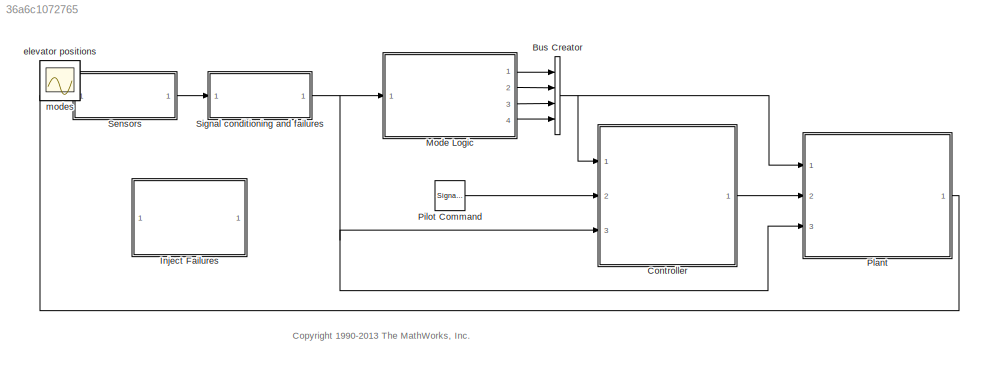
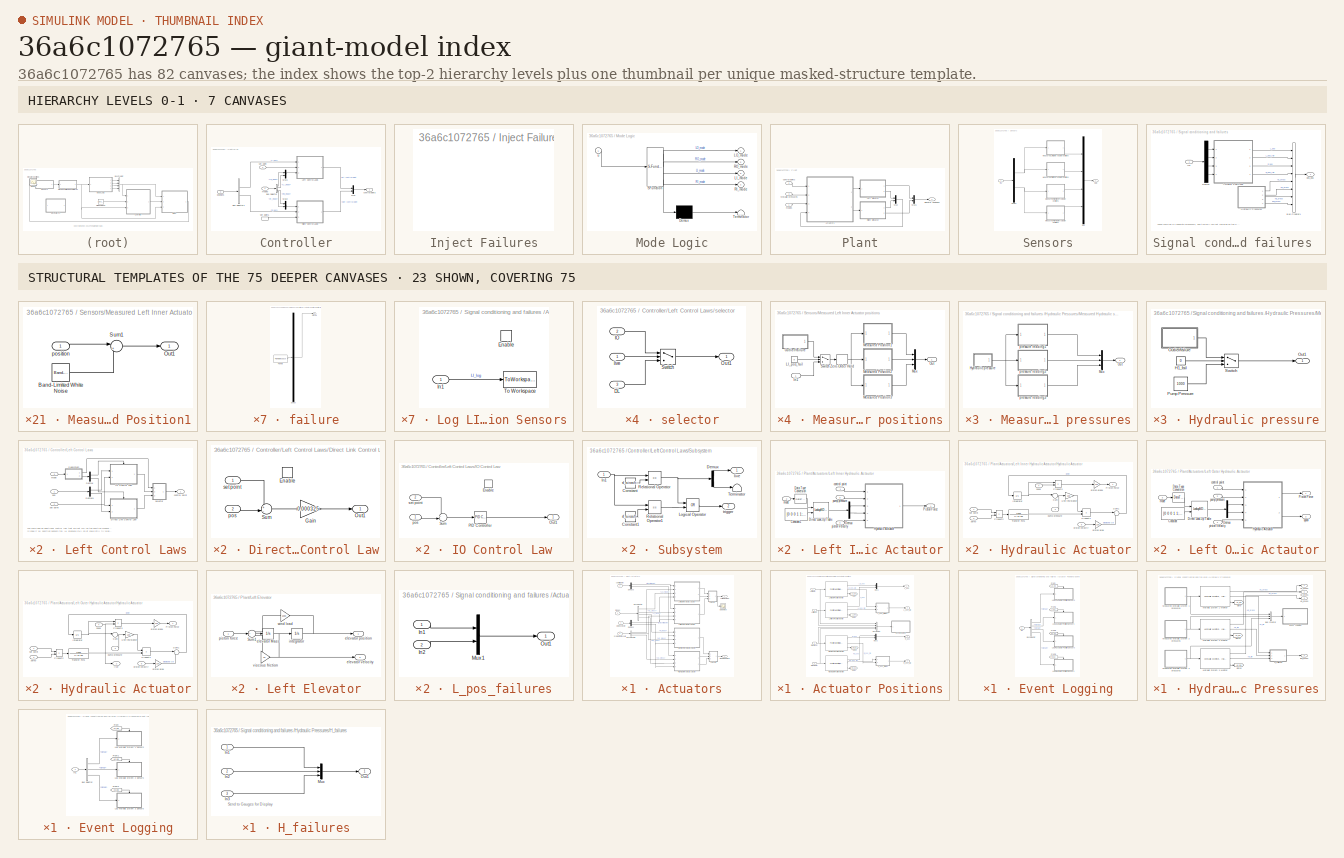
[diagram: thumbnail index - top-2 hierarchy levels (7 canvases) + 23 structural-template representatives of the remaining 75 canvases]
MODEL slx_36a6c1072765
KIND model
CONFIG AbsTol = auto
CONFIG EnableMultiTasking = on
CONFIG FixedStep = auto
CONFIG MaxStep = auto
CONFIG MinStep = auto
CONFIG PreLoadFcn = noise_factor=1;\nload sf_aircraft_buses;
CONFIG RelTol = 1e-3
CONFIG SampleTimeConstraint = Unconstrained
CONFIG Solver = ode4
CONFIG SolverName = ode4
CONFIG StartTime = 0.0
CONFIG StopTime = inf
BLOCK [BusCreator] Bus Creator
  DisplayOption = bar
  InheritFromInputs = on
  Inputs = 4
  Ports = [4, 1]
BLOCK [SubSystem] Controller
  Ports = [3, 1]
  RequestExecContextInheritance = off
  Variant = off
BLOCK [BusSelector] Controller/Bus Selector
  OutputAsBus = off
  OutputSignals = LO_mode,LI_mode,RO_mode,RI_mode
  Ports = [1, 4]
BLOCK [BusSelector] Controller/Bus Selector1
  OutputAsBus = off
  OutputSignals = L_pos,R_pos
  Ports = [1, 2]
BLOCK [SubSystem] Controller/Left Control Laws
  Ports = [3, 1]
  RequestExecContextInheritance = off
  Variant = off
BLOCK [Demux] Controller/Left Control Laws/Demux
  Outputs = 2
  Ports = [1, 2]
BLOCK [Demux] Controller/Left Control Laws/Demux1
  Outputs = 2
  Ports = [1, 2]
BLOCK [SubSystem] Controller/Left Control Laws/Direct Link Control Law
  Ports = [2, 1, 1]
  RequestExecContextInheritance = off
  Variant = off
BLOCK [EnablePort] Controller/Left Control Laws/Direct Link Control Law/Enable
  Ports = []
  PropagateVarSize = During execution
BLOCK [Gain] Controller/Left Control Laws/Direct Link Control Law/Gain
  Gain = 0.000325
BLOCK [Outport] Controller/Left Control Laws/Direct Link Control Law/Out1
  IconDisplay = Port number
  InitialOutput = [0]
BLOCK [Sum] Controller/Left Control Laws/Direct Link Control Law/Sum
  IconShape = round
  InputSameDT = off
  Inputs = +-|
  OutDataTypeStr = Inherit: Inherit via internal rule
  Ports = [2, 1]
BLOCK [Inport] Controller/Left Control Laws/Direct Link Control Law/pos
  IconDisplay = Port number
  Port = 2
BLOCK [Inport] Controller/Left Control Laws/Direct Link Control Law/set point
  IconDisplay = Port number
BLOCK [SubSystem] Controller/Left Control Laws/IO Control Law
  Ports = [2, 1, 1]
  RequestExecContextInheritance = off
  Variant = off
BLOCK [EnablePort] Controller/Left Control Laws/IO Control Law/Enable
  Ports = []
  PropagateVarSize = During execution
  StatesWhenEnabling = reset
BLOCK [Outport] Controller/Left Control Laws/IO Control Law/Out1
  IconDisplay = Port number
  InitialOutput = [0]
  SampleTime = .01
BLOCK [Reference] Controller/Left Control Laws/IO Control Law/PID Controller  REF=simulink_need_slupdate/PID Controller
  Ports = [1, 1]
  SourceBlock = simulink_need_slupdate/PID Controller
  SourceProductBaseCode = SL
  SourceProductName = Simulink
  SourceType = PID Controller
BLOCK [Sum] Controller/Left Control Laws/IO Control Law/Sum
  IconShape = round
  InputSameDT = off
  Inputs = +-|
  OutDataTypeStr = Inherit: Inherit via internal rule
  Ports = [2, 1]
BLOCK [Inport] Controller/Left Control Laws/IO Control Law/pos
  IconDisplay = Port number
BLOCK [Inport] Controller/Left Control Laws/IO Control Law/set point
  IconDisplay = Port number
  Port = 2
BLOCK [SubSystem] Controller/Left Control Laws/Subsystem
  Ports = [1, 2]
  RequestExecContextInheritance = off
  Variant = off
BLOCK [Constant] Controller/Left Control Laws/Subsystem/Constant
  OutDataTypeStr = Enum: sf_aircraft_ModeType
  Value = sf_aircraft_ModeType.Active
BLOCK [Constant] Controller/Left Control Laws/Subsystem/Constant1
  OutDataTypeStr = Enum: sf_aircraft_ModeType
  Value = sf_aircraft_ModeType.Standby
BLOCK [Demux] Controller/Left Control Laws/Subsystem/Demux
  Outputs = 2
  Ports = [1, 2]
BLOCK [Inport] Controller/Left Control Laws/Subsystem/In1
  IconDisplay = Port number
BLOCK [Logic] Controller/Left Control Laws/Subsystem/Logical Operator
  AllPortsSameDT = off
  Operator = OR
  Ports = [2, 1]
BLOCK [RelationalOperator] Controller/Left Control Laws/Subsystem/Relational Operator
  InputSameDT = off
  Operator = ==
  Ports = [2, 1]
BLOCK [RelationalOperator] Controller/Left Control Laws/Subsystem/Relational Operator1
  InputSameDT = off
  Operator = ==
  Ports = [2, 1]
BLOCK [Terminator] Controller/Left Control Laws/Subsystem/Terminator
BLOCK [Outport] Controller/Left Control Laws/Subsystem/live
  IconDisplay = Port number
BLOCK [Outport] Controller/Left Control Laws/Subsystem/trigger
  IconDisplay = Port number
  Port = 2
BLOCK [Outport] Controller/Left Control Laws/control point
  IconDisplay = Port number
BLOCK [Inport] Controller/Left Control Laws/mode
  IconDisplay = Port number
  Port = 3
BLOCK [Inport] Controller/Left Control Laws/pos
  IconDisplay = Port number
BLOCK [SubSystem] Controller/Left Control Laws/selector
  Ports = [3, 1]
  RequestExecContextInheritance = off
  Variant = off
BLOCK [Inport] Controller/Left Control Laws/selector/DL
  IconDisplay = Port number
  Port = 3
BLOCK [Inport] Controller/Left Control Laws/selector/IO
  IconDisplay = Port number
  Port = 2
BLOCK [Outport] Controller/Left Control Laws/selector/Out1
  IconDisplay = Port number
  SampleTime = .01
BLOCK [Switch] Controller/Left Control Laws/selector/Switch
  Criteria = u2 ~= 0
  InputSameDT = off
BLOCK [Inport] Controller/Left Control Laws/selector/live
  IconDisplay = Port number
BLOCK [Inport] Controller/Left Control Laws/set point
  IconDisplay = Port number
  Port = 2
  SampleTime = 0.01
BLOCK [Mux] Controller/Mux
  DisplayOption = bar
  Inputs = 2
  Ports = [2, 1]
BLOCK [Mux] Controller/Mux1
  DisplayOption = bar
  Inputs = 2
  Ports = [2, 1]
BLOCK [Mux] Controller/Mux2
  DisplayOption = bar
  Inputs = 2
  Ports = [2, 1]
BLOCK [SubSystem] Controller/Right Control Laws
  Ports = [3, 1]
  RequestExecContextInheritance = off
  Variant = off
BLOCK [Demux] Controller/Right Control Laws/Demux
  Outputs = 2
  Ports = [1, 2]
BLOCK [Demux] Controller/Right Control Laws/Demux1
  Outputs = 2
  Ports = [1, 2]
BLOCK [SubSystem] Controller/Right Control Laws/Direct Link Control Law
  Ports = [2, 1, 1]
  RequestExecContextInheritance = off
  Variant = off
BLOCK [EnablePort] Controller/Right Control Laws/Direct Link Control Law/Enable
  Ports = []
  PropagateVarSize = During execution
BLOCK [Gain] Controller/Right Control Laws/Direct Link Control Law/Gain
  Gain = 0.000325
BLOCK [Outport] Controller/Right Control Laws/Direct Link Control Law/Out1
  IconDisplay = Port number
  InitialOutput = [0]
BLOCK [Sum] Controller/Right Control Laws/Direct Link Control Law/Sum
  IconShape = round
  InputSameDT = off
  Inputs = +-|
  OutDataTypeStr = Inherit: Inherit via internal rule
  Ports = [2, 1]
BLOCK [Inport] Controller/Right Control Laws/Direct Link Control Law/pos
  IconDisplay = Port number
  Port = 2
BLOCK [Inport] Controller/Right Control Laws/Direct Link Control Law/set point
  IconDisplay = Port number
BLOCK [SubSystem] Controller/Right Control Laws/IO Control Law
  Ports = [2, 1, 1]
  RequestExecContextInheritance = off
  Variant = off
BLOCK [EnablePort] Controller/Right Control Laws/IO Control Law/Enable
  Ports = []
  PropagateVarSize = During execution
BLOCK [Outport] Controller/Right Control Laws/IO Control Law/Out1
  IconDisplay = Port number
  InitialOutput = [0]
  SampleTime = .01
BLOCK [Reference] Controller/Right Control Laws/IO Control Law/PID Controller  REF=simulink_need_slupdate/PID Controller
  Ports = [1, 1]
  SourceBlock = simulink_need_slupdate/PID Controller
  SourceProductBaseCode = SL
  SourceProductName = Simulink
  SourceType = PID Controller
BLOCK [Sum] Controller/Right Control Laws/IO Control Law/Sum
  IconShape = round
  InputSameDT = off
  Inputs = +-|
  OutDataTypeStr = Inherit: Inherit via internal rule
  Ports = [2, 1]
BLOCK [Inport] Controller/Right Control Laws/IO Control Law/pos
  IconDisplay = Port number
BLOCK [Inport] Controller/Right Control Laws/IO Control Law/set point
  IconDisplay = Port number
  Port = 2
BLOCK [SubSystem] Controller/Right Control Laws/Subsystem
  Ports = [1, 2]
  RequestExecContextInheritance = off
  Variant = off
BLOCK [Constant] Controller/Right Control Laws/Subsystem/Constant
  OutDataTypeStr = Enum: sf_aircraft_ModeType
  Value = sf_aircraft_ModeType.Active
BLOCK [Constant] Controller/Right Control Laws/Subsystem/Constant1
  OutDataTypeStr = Enum: sf_aircraft_ModeType
  Value = sf_aircraft_ModeType.Standby
BLOCK [Demux] Controller/Right Control Laws/Subsystem/Demux
  Outputs = 2
  Ports = [1, 2]
BLOCK [Inport] Controller/Right Control Laws/Subsystem/In1
  IconDisplay = Port number
BLOCK [Logic] Controller/Right Control Laws/Subsystem/Logical Operator
  AllPortsSameDT = off
  Operator = OR
  Ports = [2, 1]
BLOCK [RelationalOperator] Controller/Right Control Laws/Subsystem/Relational Operator
  InputSameDT = off
  Operator = ==
  Ports = [2, 1]
BLOCK [RelationalOperator] Controller/Right Control Laws/Subsystem/Relational Operator1
  InputSameDT = off
  Operator = ==
  Ports = [2, 1]
BLOCK [Terminator] Controller/Right Control Laws/Subsystem/Terminator
BLOCK [Outport] Controller/Right Control Laws/Subsystem/live
  IconDisplay = Port number
BLOCK [Outport] Controller/Right Control Laws/Subsystem/trigger
  IconDisplay = Port number
  Port = 2
BLOCK [Outport] Controller/Right Control Laws/contol point
  IconDisplay = Port number
BLOCK [Inport] Controller/Right Control Laws/mode
  IconDisplay = Port number
BLOCK [Inport] Controller/Right Control Laws/pos
  IconDisplay = Port number
  Port = 2
BLOCK [SubSystem] Controller/Right Control Laws/selector
  Ports = [3, 1]
  RequestExecContextInheritance = off
  Variant = off
BLOCK [Inport] Controller/Right Control Laws/selector/DL
  IconDisplay = Port number
  Port = 3
BLOCK [Inport] Controller/Right Control Laws/selector/IO
  IconDisplay = Port number
  Port = 2
BLOCK [Outport] Controller/Right Control Laws/selector/Out1
  IconDisplay = Port number
BLOCK [Switch] Controller/Right Control Laws/selector/Switch
  Criteria = u2 ~= 0
  InputSameDT = off
BLOCK [Inport] Controller/Right Control Laws/selector/live
  IconDisplay = Port number
BLOCK [Inport] Controller/Right Control Laws/set point
  IconDisplay = Port number
  Port = 3
  SampleTime = 0.01
BLOCK [Outport] Controller/control points
  IconDisplay = Port number
BLOCK [Inport] Controller/modes
  IconDisplay = Port number
BLOCK [Inport] Controller/positions
  IconDisplay = Port number
  Port = 3
  SampleTime = 0.01
BLOCK [Inport] Controller/set point
  IconDisplay = Port number
  Port = 2
  SampleTime = 0.01
BLOCK [InportShadow] Controller/set point1
  IconDisplay = Port number
  Port = 2
  SampleTime = 0.01
BLOCK [SubSystem] Inject Failures
  OpenFcn = sf_aircraft_failures
  Ports = []
  RequestExecContextInheritance = off
  Variant = off
BLOCK [SubSystem] Mode Logic
  ErrorFcn = Stateflow.Translate.translate
  PermitHierarchicalResolution = ExplicitOnly
  Ports = [1, 4]
  RequestExecContextInheritance = off
  SFBlockType = Chart
  TreatAsAtomicUnit = on
  Variant = off
BLOCK [Demux] Mode Logic/ Demux 
  Outputs = 1
  Ports = [1, 1]
BLOCK [Outport] Mode Logic/ LI_mode
  IconDisplay = Port number
  Port = 3
BLOCK [Outport] Mode Logic/ LO_mode
  IconDisplay = Port number
BLOCK [Outport] Mode Logic/ RI_mode
  IconDisplay = Port number
  Port = 4
BLOCK [Outport] Mode Logic/ RO_mode
  IconDisplay = Port number
  Port = 2
BLOCK [S-Function] Mode Logic/ SFunction 
  EnableBusSupport = off
  FunctionName = sf_sfun
  PortCounts = [1 5]
  Ports = [1, 5]
  SFcnIsStateOwnerBlock = off
  SFunctionDeploymentMode = off
  Tag = Stateflow S-Function sf_aircraft 3
BLOCK [Terminator] Mode Logic/ Terminator 
BLOCK [Inport] Mode Logic/u
  IconDisplay = Port number
BLOCK [SignalGenerator] Pilot Command
  Amplitude = .75
  Frequency = 0.05
  Ports = [0, 1]
  WaveForm = square
BLOCK [SubSystem] Plant
  Ports = [3, 1]
  RequestExecContextInheritance = off
  Variant = off
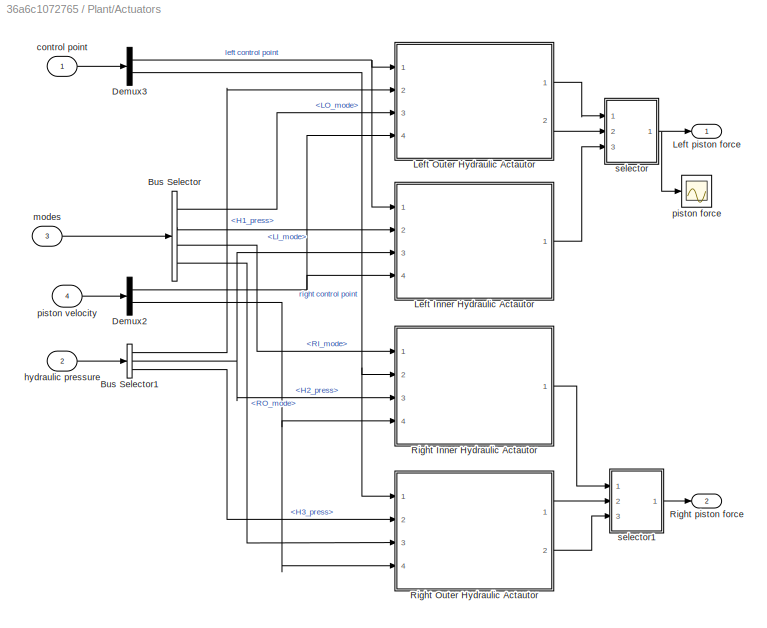
BLOCK [SubSystem] Plant/Actuators
  Ports = [4, 2]
  RequestExecContextInheritance = off
  Variant = off
BLOCK [BusSelector] Plant/Actuators/Bus Selector
  OutputAsBus = off
  OutputSignals = LO_mode,LI_mode,RI_mode,RO_mode
  Ports = [1, 4]
BLOCK [BusSelector] Plant/Actuators/Bus Selector1
  OutputAsBus = off
  OutputSignals = H1_press,H2_press,H3_press
  Ports = [1, 3]
BLOCK [Demux] Plant/Actuators/Demux2
  Outputs = 2
  Ports = [1, 2]
BLOCK [Demux] Plant/Actuators/Demux3
  Outputs = 2
  Ports = [1, 2]
BLOCK [SubSystem] Plant/Actuators/Left Inner Hydraulic Actautor
  Ports = [4, 1]
  RequestExecContextInheritance = off
  Variant = off
BLOCK [Constant] Plant/Actuators/Left Inner Hydraulic Actautor/Constant1
  OutDataTypeStr = boolean
  Value = [0 0 0 1 1;0 0 0 0 1]
  VectorParams1D = off
BLOCK [DataTypeConversion] Plant/Actuators/Left Inner Hydraulic Actautor/Data Type Conversion
  RndMeth = Floor
  SaturateOnIntegerOverflow = off
BLOCK [Demux] Plant/Actuators/Left Inner Hydraulic Actautor/Demux
  Outputs = 2
  Ports = [1, 2]
BLOCK [LookupNDDirect] Plant/Actuators/Left Inner Hydraulic Actautor/Direct Look-Up Table
  DiagnosticForOutOfRangeInput = Error
  InputsSelectThisObjectFromTable = Column
  Ports = [2, 1]
  Table = [0 0 1 1;0 0 0 1]
  TableIsInput = on
BLOCK [SubSystem] Plant/Actuators/Left Inner Hydraulic Actautor/Hydraulic Actuator
  Ports = [5, 1]
  RequestExecContextInheritance = off
  Variant = off
BLOCK [Integrator] Plant/Actuators/Left Inner Hydraulic Actautor/Hydraulic Actuator/Integrator
  Ports = [1, 1]
BLOCK [Gain] Plant/Actuators/Left Inner Hydraulic Actautor/Hydraulic Actuator/Line resistance
  Gain = 100
BLOCK [Outport] Plant/Actuators/Left Inner Hydraulic Actautor/Hydraulic Actuator/Piston Force
  IconDisplay = Port number
BLOCK [Product] Plant/Actuators/Left Inner Hydraulic Actautor/Hydraulic Actuator/Product1
  InputSameDT = off
  Ports = [2, 1]
  RndMeth = Floor
BLOCK [Product] Plant/Actuators/Left Inner Hydraulic Actautor/Hydraulic Actuator/Product2
  InputSameDT = off
  Ports = [2, 1]
  RndMeth = Floor
BLOCK [Product] Plant/Actuators/Left Inner Hydraulic Actautor/Hydraulic Actuator/Product3
  InputSameDT = off
  Ports = [2, 1]
  RndMeth = Floor
BLOCK [Sum] Plant/Actuators/Left Inner Hydraulic Actautor/Hydraulic Actuator/Sum
  IconShape = round
  InputSameDT = off
  Inputs = |-+
  OutDataTypeStr = Inherit: Inherit via internal rule
  Ports = [2, 1]
BLOCK [Sum] Plant/Actuators/Left Inner Hydraulic Actautor/Hydraulic Actuator/Sum1
  IconShape = round
  InputSameDT = off
  Inputs = |+-
  OutDataTypeStr = Inherit: Inherit via internal rule
  Ports = [2, 1]
BLOCK [TransferFcn] Plant/Actuators/Left Inner Hydraulic Actautor/Hydraulic Actuator/Transfer Fcn1
  Denominator = [1 10 30]
  Numerator = [200]
BLOCK [Gain] Plant/Actuators/Left Inner Hydraulic Actautor/Hydraulic Actuator/piston area
  Gain = 100
BLOCK [Gain] Plant/Actuators/Left Inner Hydraulic Actautor/Hydraulic Actuator/piston area1
  Gain = 100
BLOCK [Inport] Plant/Actuators/Left Inner Hydraulic Actautor/Hydraulic Actuator/piston velocity
  IconDisplay = Port number
  Port = 5
BLOCK [Inport] Plant/Actuators/Left Inner Hydraulic Actautor/Hydraulic Actuator/pump pressure
  IconDisplay = Port number
  Port = 2
BLOCK [Inport] Plant/Actuators/Left Inner Hydraulic Actautor/Hydraulic Actuator/servo
  IconDisplay = Port number
  Port = 3
BLOCK [Inport] Plant/Actuators/Left Inner Hydraulic Actautor/Hydraulic Actuator/set point
  IconDisplay = Port number
BLOCK [Inport] Plant/Actuators/Left Inner Hydraulic Actautor/Hydraulic Actuator/spool
  IconDisplay = Port number
  Port = 4
BLOCK [Outport] Plant/Actuators/Left Inner Hydraulic Actautor/Piston Force
  IconDisplay = Port number
BLOCK [Inport] Plant/Actuators/Left Inner Hydraulic Actautor/control point
  IconDisplay = Port number
BLOCK [Inport] Plant/Actuators/Left Inner Hydraulic Actautor/mode
  IconDisplay = Port number
  Port = 2
BLOCK [Inport] Plant/Actuators/Left Inner Hydraulic Actautor/piston Velocity
  IconDisplay = Port number
  Port = 4
BLOCK [Inport] Plant/Actuators/Left Inner Hydraulic Actautor/pump pressure
  IconDisplay = Port number
  Port = 3
BLOCK [SubSystem] Plant/Actuators/Left Outer Hydraulic Actautor
  Ports = [4, 2]
  RequestExecContextInheritance = off
  Variant = off
BLOCK [Constant] Plant/Actuators/Left Outer Hydraulic Actautor/Constant
  OutDataTypeStr = boolean
  Value = [0 0 0 1 1;0 0 0 0 1]
  VectorParams1D = off
BLOCK [DataTypeConversion] Plant/Actuators/Left Outer Hydraulic Actautor/Data Type Conversion
  RndMeth = Floor
  SaturateOnIntegerOverflow = off
BLOCK [Demux] Plant/Actuators/Left Outer Hydraulic Actautor/Demux
  Outputs = 2
  Ports = [1, 2]
BLOCK [LookupNDDirect] Plant/Actuators/Left Outer Hydraulic Actautor/Direct Look-Up Table
  DiagnosticForOutOfRangeInput = Error
  InputsSelectThisObjectFromTable = Column
  Ports = [2, 1]
  Table = [0 0 1 1;0 0 0 1]
  TableIsInput = on
BLOCK [SubSystem] Plant/Actuators/Left Outer Hydraulic Actautor/Hydraulic Actuator
  Ports = [5, 2]
  RequestExecContextInheritance = off
  Variant = off
BLOCK [Integrator] Plant/Actuators/Left Outer Hydraulic Actautor/Hydraulic Actuator/Integrator
  Ports = [1, 1]
BLOCK [Gain] Plant/Actuators/Left Outer Hydraulic Actautor/Hydraulic Actuator/Line resistance
  Gain = 100
BLOCK [Outport] Plant/Actuators/Left Outer Hydraulic Actautor/Hydraulic Actuator/Piston Force
  IconDisplay = Port number
BLOCK [Product] Plant/Actuators/Left Outer Hydraulic Actautor/Hydraulic Actuator/Product1
  InputSameDT = off
  Ports = [2, 1]
  RndMeth = Floor
BLOCK [Product] Plant/Actuators/Left Outer Hydraulic Actautor/Hydraulic Actuator/Product2
  InputSameDT = off
  Ports = [2, 1]
  RndMeth = Floor
BLOCK [Product] Plant/Actuators/Left Outer Hydraulic Actautor/Hydraulic Actuator/Product3
  InputSameDT = off
  Ports = [2, 1]
  RndMeth = Floor
BLOCK [Sum] Plant/Actuators/Left Outer Hydraulic Actautor/Hydraulic Actuator/Sum
  IconShape = round
  InputSameDT = off
  Inputs = |-+
  OutDataTypeStr = Inherit: Inherit via internal rule
  Ports = [2, 1]
BLOCK [Sum] Plant/Actuators/Left Outer Hydraulic Actautor/Hydraulic Actuator/Sum1
  IconShape = round
  InputSameDT = off
  Inputs = |+-
  OutDataTypeStr = Inherit: Inherit via internal rule
  Ports = [2, 1]
BLOCK [TransferFcn] Plant/Actuators/Left Outer Hydraulic Actautor/Hydraulic Actuator/Transfer Fcn1
  Denominator = [1 10 30]
  Numerator = [200]
BLOCK [Outport] Plant/Actuators/Left Outer Hydraulic Actautor/Hydraulic Actuator/live
  IconDisplay = Port number
  Port = 2
BLOCK [Gain] Plant/Actuators/Left Outer Hydraulic Actautor/Hydraulic Actuator/piston area
  Gain = 100
BLOCK [Gain] Plant/Actuators/Left Outer Hydraulic Actautor/Hydraulic Actuator/piston area1
  Gain = 100
BLOCK [Inport] Plant/Actuators/Left Outer Hydraulic Actautor/Hydraulic Actuator/piston velocity
  IconDisplay = Port number
  Port = 5
BLOCK [Inport] Plant/Actuators/Left Outer Hydraulic Actautor/Hydraulic Actuator/pump pressure
  IconDisplay = Port number
  Port = 2
BLOCK [Inport] Plant/Actuators/Left Outer Hydraulic Actautor/Hydraulic Actuator/servo
  IconDisplay = Port number
  Port = 3
BLOCK [Inport] Plant/Actuators/Left Outer Hydraulic Actautor/Hydraulic Actuator/set point
  IconDisplay = Port number
BLOCK [Inport] Plant/Actuators/Left Outer Hydraulic Actautor/Hydraulic Actuator/spool
  IconDisplay = Port number
  Port = 4
BLOCK [Outport] Plant/Actuators/Left Outer Hydraulic Actautor/Piston Force
  IconDisplay = Port number
BLOCK [Inport] Plant/Actuators/Left Outer Hydraulic Actautor/control point
  IconDisplay = Port number
BLOCK [Inport] Plant/Actuators/Left Outer Hydraulic Actautor/mode
  IconDisplay = Port number
  Port = 3
BLOCK [Inport] Plant/Actuators/Left Outer Hydraulic Actautor/piston Velocity
  IconDisplay = Port number
  Port = 4
BLOCK [Inport] Plant/Actuators/Left Outer Hydraulic Actautor/pump pressure
  IconDisplay = Port number
  Port = 2
BLOCK [Outport] Plant/Actuators/Left Outer Hydraulic Actautor/spool
  IconDisplay = Port number
  Port = 2
BLOCK [Outport] Plant/Actuators/Left piston force
  IconDisplay = Port number
BLOCK [SubSystem] Plant/Actuators/Right Inner Hydraulic Actautor
  Ports = [4, 1]
  RequestExecContextInheritance = off
  Variant = off
BLOCK [Constant] Plant/Actuators/Right Inner Hydraulic Actautor/Constant
  OutDataTypeStr = boolean
  Value = [0 0 0 1 1;0 0 0 0 1]
  VectorParams1D = off
BLOCK [DataTypeConversion] Plant/Actuators/Right Inner Hydraulic Actautor/Data Type Conversion
  RndMeth = Floor
  SaturateOnIntegerOverflow = off
BLOCK [Demux] Plant/Actuators/Right Inner Hydraulic Actautor/Demux
  Outputs = 2
  Ports = [1, 2]
BLOCK [LookupNDDirect] Plant/Actuators/Right Inner Hydraulic Actautor/Direct Look-Up Table
  DiagnosticForOutOfRangeInput = Error
  InputsSelectThisObjectFromTable = Column
  Ports = [2, 1]
  Table = [0 0 1 1;0 0 0 1]
  TableIsInput = on
BLOCK [SubSystem] Plant/Actuators/Right Inner Hydraulic Actautor/Hydraulic Actuator
  Ports = [5, 1]
  RequestExecContextInheritance = off
  Variant = off
BLOCK [Integrator] Plant/Actuators/Right Inner Hydraulic Actautor/Hydraulic Actuator/Integrator
  Ports = [1, 1]
BLOCK [Gain] Plant/Actuators/Right Inner Hydraulic Actautor/Hydraulic Actuator/Line resistance
  Gain = 100
BLOCK [Outport] Plant/Actuators/Right Inner Hydraulic Actautor/Hydraulic Actuator/Piston Force
  IconDisplay = Port number
BLOCK [Product] Plant/Actuators/Right Inner Hydraulic Actautor/Hydraulic Actuator/Product1
  InputSameDT = off
  Ports = [2, 1]
  RndMeth = Floor
BLOCK [Product] Plant/Actuators/Right Inner Hydraulic Actautor/Hydraulic Actuator/Product2
  InputSameDT = off
  Ports = [2, 1]
  RndMeth = Floor
BLOCK [Product] Plant/Actuators/Right Inner Hydraulic Actautor/Hydraulic Actuator/Product3
  InputSameDT = off
  Ports = [2, 1]
  RndMeth = Floor
BLOCK [Sum] Plant/Actuators/Right Inner Hydraulic Actautor/Hydraulic Actuator/Sum
  IconShape = round
  InputSameDT = off
  Inputs = |-+
  OutDataTypeStr = Inherit: Inherit via internal rule
  Ports = [2, 1]
BLOCK [Sum] Plant/Actuators/Right Inner Hydraulic Actautor/Hydraulic Actuator/Sum1
  IconShape = round
  InputSameDT = off
  Inputs = |+-
  OutDataTypeStr = Inherit: Inherit via internal rule
  Ports = [2, 1]
BLOCK [TransferFcn] Plant/Actuators/Right Inner Hydraulic Actautor/Hydraulic Actuator/Transfer Fcn1
  Denominator = [1 10 30]
  Numerator = [200]
BLOCK [Gain] Plant/Actuators/Right Inner Hydraulic Actautor/Hydraulic Actuator/piston area
  Gain = 100
BLOCK [Gain] Plant/Actuators/Right Inner Hydraulic Actautor/Hydraulic Actuator/piston area1
  Gain = 100
BLOCK [Inport] Plant/Actuators/Right Inner Hydraulic Actautor/Hydraulic Actuator/piston velocity
  IconDisplay = Port number
  Port = 5
BLOCK [Inport] Plant/Actuators/Right Inner Hydraulic Actautor/Hydraulic Actuator/pump pressure
  IconDisplay = Port number
  Port = 2
BLOCK [Inport] Plant/Actuators/Right Inner Hydraulic Actautor/Hydraulic Actuator/servo
  IconDisplay = Port number
  Port = 3
BLOCK [Inport] Plant/Actuators/Right Inner Hydraulic Actautor/Hydraulic Actuator/set point
  IconDisplay = Port number
BLOCK [Inport] Plant/Actuators/Right Inner Hydraulic Actautor/Hydraulic Actuator/spool
  IconDisplay = Port number
  Port = 4
BLOCK [Outport] Plant/Actuators/Right Inner Hydraulic Actautor/Piston Force
  IconDisplay = Port number
BLOCK [Inport] Plant/Actuators/Right Inner Hydraulic Actautor/control point
  IconDisplay = Port number
  Port = 2
BLOCK [Inport] Plant/Actuators/Right Inner Hydraulic Actautor/mode
  IconDisplay = Port number
BLOCK [Inport] Plant/Actuators/Right Inner Hydraulic Actautor/piston Velocity
  IconDisplay = Port number
  Port = 4
BLOCK [Inport] Plant/Actuators/Right Inner Hydraulic Actautor/pump pressure
  IconDisplay = Port number
  Port = 3
BLOCK [SubSystem] Plant/Actuators/Right Outer Hydraulic Actautor
  Ports = [4, 2]
  RequestExecContextInheritance = off
  Variant = off
BLOCK [Constant] Plant/Actuators/Right Outer Hydraulic Actautor/Constant1
  OutDataTypeStr = boolean
  Value = [0 0 0 1 1;0 0 0 0 1]
  VectorParams1D = off
BLOCK [DataTypeConversion] Plant/Actuators/Right Outer Hydraulic Actautor/Data Type Conversion
  RndMeth = Floor
  SaturateOnIntegerOverflow = off
BLOCK [Demux] Plant/Actuators/Right Outer Hydraulic Actautor/Demux
  Outputs = 2
  Ports = [1, 2]
BLOCK [LookupNDDirect] Plant/Actuators/Right Outer Hydraulic Actautor/Direct Look-Up Table
  DiagnosticForOutOfRangeInput = Error
  InputsSelectThisObjectFromTable = Column
  Ports = [2, 1]
  Table = [0 0 1 1;0 0 0 1]
  TableIsInput = on
BLOCK [SubSystem] Plant/Actuators/Right Outer Hydraulic Actautor/Hydraulic Actuator
  Ports = [5, 2]
  RequestExecContextInheritance = off
  Variant = off
BLOCK [Integrator] Plant/Actuators/Right Outer Hydraulic Actautor/Hydraulic Actuator/Integrator
  Ports = [1, 1]
BLOCK [Gain] Plant/Actuators/Right Outer Hydraulic Actautor/Hydraulic Actuator/Line resistance
  Gain = 100
BLOCK [Outport] Plant/Actuators/Right Outer Hydraulic Actautor/Hydraulic Actuator/Piston Force
  IconDisplay = Port number
BLOCK [Product] Plant/Actuators/Right Outer Hydraulic Actautor/Hydraulic Actuator/Product1
  InputSameDT = off
  Ports = [2, 1]
  RndMeth = Floor
BLOCK [Product] Plant/Actuators/Right Outer Hydraulic Actautor/Hydraulic Actuator/Product2
  InputSameDT = off
  Ports = [2, 1]
  RndMeth = Floor
BLOCK [Product] Plant/Actuators/Right Outer Hydraulic Actautor/Hydraulic Actuator/Product3
  InputSameDT = off
  Ports = [2, 1]
  RndMeth = Floor
BLOCK [Sum] Plant/Actuators/Right Outer Hydraulic Actautor/Hydraulic Actuator/Sum
  IconShape = round
  InputSameDT = off
  Inputs = |-+
  OutDataTypeStr = Inherit: Inherit via internal rule
  Ports = [2, 1]
BLOCK [Sum] Plant/Actuators/Right Outer Hydraulic Actautor/Hydraulic Actuator/Sum1
  IconShape = round
  InputSameDT = off
  Inputs = |+-
  OutDataTypeStr = Inherit: Inherit via internal rule
  Ports = [2, 1]
BLOCK [TransferFcn] Plant/Actuators/Right Outer Hydraulic Actautor/Hydraulic Actuator/Transfer Fcn1
  Denominator = [1 10 30]
  Numerator = [200]
BLOCK [Outport] Plant/Actuators/Right Outer Hydraulic Actautor/Hydraulic Actuator/live
  IconDisplay = Port number
  Port = 2
BLOCK [Gain] Plant/Actuators/Right Outer Hydraulic Actautor/Hydraulic Actuator/piston area
  Gain = 100
BLOCK [Gain] Plant/Actuators/Right Outer Hydraulic Actautor/Hydraulic Actuator/piston area1
  Gain = 100
BLOCK [Inport] Plant/Actuators/Right Outer Hydraulic Actautor/Hydraulic Actuator/piston velocity
  IconDisplay = Port number
  Port = 5
BLOCK [Inport] Plant/Actuators/Right Outer Hydraulic Actautor/Hydraulic Actuator/pump pressure
  IconDisplay = Port number
  Port = 2
BLOCK [Inport] Plant/Actuators/Right Outer Hydraulic Actautor/Hydraulic Actuator/servo
  IconDisplay = Port number
  Port = 3
BLOCK [Inport] Plant/Actuators/Right Outer Hydraulic Actautor/Hydraulic Actuator/set point
  IconDisplay = Port number
BLOCK [Inport] Plant/Actuators/Right Outer Hydraulic Actautor/Hydraulic Actuator/spool
  IconDisplay = Port number
  Port = 4
BLOCK [Outport] Plant/Actuators/Right Outer Hydraulic Actautor/Piston Force
  IconDisplay = Port number
BLOCK [Inport] Plant/Actuators/Right Outer Hydraulic Actautor/control point
  IconDisplay = Port number
BLOCK [Inport] Plant/Actuators/Right Outer Hydraulic Actautor/mode
  IconDisplay = Port number
  Port = 3
BLOCK [Inport] Plant/Actuators/Right Outer Hydraulic Actautor/piston Velocity
  IconDisplay = Port number
  Port = 4
BLOCK [Inport] Plant/Actuators/Right Outer Hydraulic Actautor/pump pressure
  IconDisplay = Port number
  Port = 2
BLOCK [Outport] Plant/Actuators/Right Outer Hydraulic Actautor/spool
  IconDisplay = Port number
  Port = 2
BLOCK [Outport] Plant/Actuators/Right piston force
  IconDisplay = Port number
  Port = 2
BLOCK [Inport] Plant/Actuators/control point
  IconDisplay = Port number
BLOCK [Inport] Plant/Actuators/hydraulic pressure
  IconDisplay = Port number
  Port = 2
BLOCK [Inport] Plant/Actuators/modes
  IconDisplay = Port number
  Port = 3
BLOCK [Scope] Plant/Actuators/piston force
  NumInputPorts = 1
  Ports = [1]
  ScopeSpecificationString = C++SS(StrPVP('Location','[343, 682, 778, 1019]'),StrPVP('Open','off'),MxPVP('AxesTitles',53,'struct(''axes1'',''%<SignalLabel>'')'),StrPVP('ShowLegends','off'),StrPVP('TimeRange','50'),StrPVP('YMin','-0.6'),StrPVP('YMax','0.8'),StrPVP('SaveName','ScopeData13'),StrPVP('DataFormat','StructureWithTime'),StrPVP('BlockParamSampleTime','0'),StrPVP('ScrollMode','on'),StrPVP('LimitDataPoints','on'),StrPVP...<+57ch>
BLOCK [Inport] Plant/Actuators/piston velocity
  IconDisplay = Port number
  Port = 4
BLOCK [SubSystem] Plant/Actuators/selector
  Ports = [3, 1]
  RequestExecContextInheritance = off
  Variant = off
BLOCK [Inport] Plant/Actuators/selector/LI
  IconDisplay = Port number
  Port = 3
BLOCK [Inport] Plant/Actuators/selector/LO
  IconDisplay = Port number
BLOCK [Outport] Plant/Actuators/selector/Out
  IconDisplay = Port number
BLOCK [Switch] Plant/Actuators/selector/Switch
  Criteria = u2 ~= 0
  InputSameDT = off
BLOCK [Inport] Plant/Actuators/selector/spool
  IconDisplay = Port number
  Port = 2
BLOCK [SubSystem] Plant/Actuators/selector1
  Ports = [3, 1]
  RequestExecContextInheritance = off
  Variant = off
BLOCK [Outport] Plant/Actuators/selector1/Out
  IconDisplay = Port number
BLOCK [Inport] Plant/Actuators/selector1/RI
  IconDisplay = Port number
BLOCK [Inport] Plant/Actuators/selector1/RO
  IconDisplay = Port number
  Port = 2
BLOCK [Switch] Plant/Actuators/selector1/Switch
  Criteria = u2 ~= 0
  InputSameDT = off
BLOCK [Inport] Plant/Actuators/selector1/spool
  IconDisplay = Port number
  Port = 3
BLOCK [SubSystem] Plant/Left Elevator
  Ports = [1, 2]
  RequestExecContextInheritance = off
  Variant = off
BLOCK [Sum] Plant/Left Elevator/Sum1
  IconShape = round
  InputSameDT = off
  Inputs = -+-
  OutDataTypeStr = Inherit: Inherit via internal rule
  Ports = [3, 1]
BLOCK [Integrator] Plant/Left Elevator/elevator Mass
  Ports = [1, 1]
BLOCK [Outport] Plant/Left Elevator/elevator position
  IconDisplay = Port number
BLOCK [Outport] Plant/Left Elevator/elevator velocity
  IconDisplay = Port number
  Port = 2
BLOCK [Integrator] Plant/Left Elevator/integrator
  Ports = [1, 1]
BLOCK [Inport] Plant/Left Elevator/piston force
  IconDisplay = Port number
BLOCK [Gain] Plant/Left Elevator/viscous friction
  Gain = 10
BLOCK [Gain] Plant/Left Elevator/wind load
  Gain = 1000
BLOCK [Mux] Plant/Mux
  DisplayOption = bar
  Inputs = 2
  Ports = [2, 1]
BLOCK [Mux] Plant/Mux1
  DisplayOption = bar
  Inputs = 2
  Ports = [2, 1]
BLOCK [SubSystem] Plant/Right Elevator
  Ports = [1, 2]
  RequestExecContextInheritance = off
  Variant = off
BLOCK [Sum] Plant/Right Elevator/Sum1
  IconShape = round
  InputSameDT = off
  Inputs = -+-
  OutDataTypeStr = Inherit: Inherit via internal rule
  Ports = [3, 1]
BLOCK [Integrator] Plant/Right Elevator/elevator Mass
  Ports = [1, 1]
BLOCK [Outport] Plant/Right Elevator/elevator position
  IconDisplay = Port number
  Port = 2
BLOCK [Outport] Plant/Right Elevator/elevator velocity
  IconDisplay = Port number
BLOCK [Integrator] Plant/Right Elevator/integrator
  Ports = [1, 1]
BLOCK [Inport] Plant/Right Elevator/piston force
  IconDisplay = Port number
BLOCK [Gain] Plant/Right Elevator/viscous friction
  Gain = 10
BLOCK [Gain] Plant/Right Elevator/wind load
  Gain = 1000
BLOCK [Inport] Plant/control points
  IconDisplay = Port number
  Port = 2
  SampleTime = 0.01
BLOCK [Outport] Plant/elevator positions
  IconDisplay = Port number
BLOCK [Inport] Plant/hydraulic pressures
  IconDisplay = Port number
  Port = 3
  SampleTime = 0.01
BLOCK [Inport] Plant/modes
  IconDisplay = Port number
BLOCK [SubSystem] Sensors
  Ports = [1, 1]
  RequestExecContextInheritance = off
  Variant = off
BLOCK [Demux] Sensors/Demux
  DisplayOption = bar
  Outputs = 2
  Ports = [1, 2]
BLOCK [Inport] Sensors/In1
  IconDisplay = Port number
BLOCK [SubSystem] Sensors/Measured Left Inner Actuator positions
  Ports = [1, 1]
  RequestExecContextInheritance = off
  Variant = off
BLOCK [Inport] Sensors/Measured Left Inner Actuator positions/In1
  IconDisplay = Port number
BLOCK [Constant] Sensors/Measured Left Inner Actuator positions/LI_pos_fail
  OutDataTypeStr = boolean
  Value = 0
BLOCK [SubSystem] Sensors/Measured Left Inner Actuator positions/Measured Position1
  Ports = [1, 1]
  RequestExecContextInheritance = off
  Variant = off
BLOCK [Reference] Sensors/Measured Left Inner Actuator positions/Measured Position1/Band-Limited White Noise  REF=simulink/Sources/Band-Limited
White Noise
  Ports = [0, 1]
  SourceBlock = simulink/Sources/Band-Limited\nWhite Noise
  SourceProductBaseCode = SL
  SourceProductName = Simulink
  SourceType = Band-Limited White Noise.
BLOCK [Outport] Sensors/Measured Left Inner Actuator positions/Measured Position1/Out1
  IconDisplay = Port number
BLOCK [Sum] Sensors/Measured Left Inner Actuator positions/Measured Position1/Sum1
  IconShape = round
  InputSameDT = off
  Inputs = |++
  OutDataTypeStr = Inherit: Inherit via internal rule
  Ports = [2, 1]
BLOCK [Inport] Sensors/Measured Left Inner Actuator positions/Measured Position1/position
  IconDisplay = Port number
BLOCK [SubSystem] Sensors/Measured Left Inner Actuator positions/Measured Position2
  Ports = [1, 1]
  RequestExecContextInheritance = off
  Variant = off
BLOCK [Reference] Sensors/Measured Left Inner Actuator positions/Measured Position2/Band-Limited White Noise  REF=simulink/Sources/Band-Limited
White Noise
  Ports = [0, 1]
  SourceBlock = simulink/Sources/Band-Limited\nWhite Noise
  SourceProductBaseCode = SL
  SourceProductName = Simulink
  SourceType = Band-Limited White Noise.
BLOCK [Outport] Sensors/Measured Left Inner Actuator positions/Measured Position2/Out1
  IconDisplay = Port number
BLOCK [Sum] Sensors/Measured Left Inner Actuator positions/Measured Position2/Sum1
  IconShape = round
  InputSameDT = off
  Inputs = |++
  OutDataTypeStr = Inherit: Inherit via internal rule
  Ports = [2, 1]
BLOCK [Inport] Sensors/Measured Left Inner Actuator positions/Measured Position2/position
  IconDisplay = Port number
BLOCK [SubSystem] Sensors/Measured Left Inner Actuator positions/Measured Position3
  Ports = [1, 1]
  RequestExecContextInheritance = off
  Variant = off
BLOCK [Reference] Sensors/Measured Left Inner Actuator positions/Measured Position3/Band-Limited White Noise  REF=simulink/Sources/Band-Limited
White Noise
  Ports = [0, 1]
  SourceBlock = simulink/Sources/Band-Limited\nWhite Noise
  SourceProductBaseCode = SL
  SourceProductName = Simulink
  SourceType = Band-Limited White Noise.
BLOCK [Outport] Sensors/Measured Left Inner Actuator positions/Measured Position3/Out1
  IconDisplay = Port number
BLOCK [Sum] Sensors/Measured Left Inner Actuator positions/Measured Position3/Sum
  IconShape = round
  InputSameDT = off
  Inputs = |++
  OutDataTypeStr = Inherit: Inherit via internal rule
  Ports = [2, 1]
BLOCK [Inport] Sensors/Measured Left Inner Actuator positions/Measured Position3/position
  IconDisplay = Port number
BLOCK [Mux] Sensors/Measured Left Inner Actuator positions/Mux
  DisplayOption = bar
  Inputs = 3
  Ports = [3, 1]
BLOCK [Outport] Sensors/Measured Left Inner Actuator positions/Out
  IconDisplay = Port number
BLOCK [SubSystem] Sensors/Measured Left Inner Actuator positions/Outlier//failure
  ClipboardFcn = sigbuilder_block('clipboard');
  CloseFcn = sigbuilder_block('close');
  ContinueFcn = sigbuilder_block('continue')
  CopyFcn = sigbuilder_block('copy');
  DeleteFcn = sigbuilder_block('delete');
  LoadFcn = sigbuilder_block('load');
  MaskHideContents = on
  ModelCloseFcn = sigbuilder_block('modelClose');
  NameChangeFcn = sigbuilder_block('namechange');
  OpenFcn = sigbuilder_block('open',[81 97.5 519.75 399.75 ]);
  PauseFcn = sigbuilder_block('pause')
  Ports = [0, 1]
  PreSaveFcn = sigbuilder_block('preSave');
  RequestExecContextInheritance = off
  StartFcn = sigbuilder_block('start');
  StopFcn = sigbuilder_block('stop');
  Tag = STV Subsys
  Variant = off
BLOCK [Demux] Sensors/Measured Left Inner Actuator positions/Outlier//failure/Demux
  Outputs = 1
  Ports = [1, 1]
  Tag = STV Demux
BLOCK [FromWorkspace] Sensors/Measured Left Inner Actuator positions/Outlier//failure/FromWs
  SampleTime = 0
  Tag = STV FromWs
  VariableName = tuvar
BLOCK [Outport] Sensors/Measured Left Inner Actuator positions/Outlier//failure/Signal 1
  IconDisplay = Port number
  Tag = STV Outport
BLOCK [Switch] Sensors/Measured Left Inner Actuator positions/Switch
  Criteria = u2 ~= 0
  InputSameDT = off
BLOCK [ZeroOrderHold] Sensors/Measured Left Inner Actuator positions/Zero-Order Hold
  SampleTime = 0.01
BLOCK [SubSystem] Sensors/Measured Left Outer Actuator positions
  Ports = [1, 1]
  RequestExecContextInheritance = off
  Variant = off
BLOCK [Inport] Sensors/Measured Left Outer Actuator positions/In1
  IconDisplay = Port number
BLOCK [Constant] Sensors/Measured Left Outer Actuator positions/LO_pos_fail
  OutDataTypeStr = boolean
  Value = 0
BLOCK [SubSystem] Sensors/Measured Left Outer Actuator positions/Measured Position1
  Ports = [1, 1]
  RequestExecContextInheritance = off
  Variant = off
BLOCK [Reference] Sensors/Measured Left Outer Actuator positions/Measured Position1/Band-Limited White Noise  REF=simulink/Sources/Band-Limited
White Noise
  Ports = [0, 1]
  SourceBlock = simulink/Sources/Band-Limited\nWhite Noise
  SourceProductBaseCode = SL
  SourceProductName = Simulink
  SourceType = Band-Limited White Noise.
BLOCK [Outport] Sensors/Measured Left Outer Actuator positions/Measured Position1/Out1
  IconDisplay = Port number
BLOCK [Sum] Sensors/Measured Left Outer Actuator positions/Measured Position1/Sum1
  IconShape = round
  InputSameDT = off
  Inputs = |++
  OutDataTypeStr = Inherit: Inherit via internal rule
  Ports = [2, 1]
BLOCK [Inport] Sensors/Measured Left Outer Actuator positions/Measured Position1/position
  IconDisplay = Port number
BLOCK [SubSystem] Sensors/Measured Left Outer Actuator positions/Measured Position2
  Ports = [1, 1]
  RequestExecContextInheritance = off
  Variant = off
BLOCK [Reference] Sensors/Measured Left Outer Actuator positions/Measured Position2/Band-Limited White Noise  REF=simulink/Sources/Band-Limited
White Noise
  Ports = [0, 1]
  SourceBlock = simulink/Sources/Band-Limited\nWhite Noise
  SourceProductBaseCode = SL
  SourceProductName = Simulink
  SourceType = Band-Limited White Noise.
BLOCK [Outport] Sensors/Measured Left Outer Actuator positions/Measured Position2/Out1
  IconDisplay = Port number
BLOCK [Sum] Sensors/Measured Left Outer Actuator positions/Measured Position2/Sum1
  IconShape = round
  InputSameDT = off
  Inputs = |++
  OutDataTypeStr = Inherit: Inherit via internal rule
  Ports = [2, 1]
BLOCK [Inport] Sensors/Measured Left Outer Actuator positions/Measured Position2/position
  IconDisplay = Port number
BLOCK [SubSystem] Sensors/Measured Left Outer Actuator positions/Measured Position3
  Ports = [1, 1]
  RequestExecContextInheritance = off
  Variant = off
BLOCK [Reference] Sensors/Measured Left Outer Actuator positions/Measured Position3/Band-Limited White Noise  REF=simulink/Sources/Band-Limited
White Noise
  Ports = [0, 1]
  SourceBlock = simulink/Sources/Band-Limited\nWhite Noise
  SourceProductBaseCode = SL
  SourceProductName = Simulink
  SourceType = Band-Limited White Noise.
BLOCK [Outport] Sensors/Measured Left Outer Actuator positions/Measured Position3/Out1
  IconDisplay = Port number
BLOCK [Sum] Sensors/Measured Left Outer Actuator positions/Measured Position3/Sum
  IconShape = round
  InputSameDT = off
  Inputs = |++
  OutDataTypeStr = Inherit: Inherit via internal rule
  Ports = [2, 1]
BLOCK [Inport] Sensors/Measured Left Outer Actuator positions/Measured Position3/position
  IconDisplay = Port number
BLOCK [Mux] Sensors/Measured Left Outer Actuator positions/Mux
  DisplayOption = bar
  Inputs = 3
  Ports = [3, 1]
BLOCK [Outport] Sensors/Measured Left Outer Actuator positions/Out
  IconDisplay = Port number
BLOCK [SubSystem] Sensors/Measured Left Outer Actuator positions/Outlier//failure
  ClipboardFcn = sigbuilder_block('clipboard');
  CloseFcn = sigbuilder_block('close');
  ContinueFcn = sigbuilder_block('continue')
  CopyFcn = sigbuilder_block('copy');
  DeleteFcn = sigbuilder_block('delete');
  LoadFcn = sigbuilder_block('load');
  MaskHideContents = on
  ModelCloseFcn = sigbuilder_block('modelClose');
  NameChangeFcn = sigbuilder_block('namechange');
  OpenFcn = sigbuilder_block('open',[81 97.5 519.75 399.75 ]);
  PauseFcn = sigbuilder_block('pause')
  Ports = [0, 1]
  PreSaveFcn = sigbuilder_block('preSave');
  RequestExecContextInheritance = off
  StartFcn = sigbuilder_block('start');
  StopFcn = sigbuilder_block('stop');
  Tag = STV Subsys
  Variant = off
BLOCK [Demux] Sensors/Measured Left Outer Actuator positions/Outlier//failure/Demux
  Outputs = 1
  Ports = [1, 1]
  Tag = STV Demux
BLOCK [FromWorkspace] Sensors/Measured Left Outer Actuator positions/Outlier//failure/FromWs
  SampleTime = 0
  Tag = STV FromWs
  VariableName = tuvar
BLOCK [Outport] Sensors/Measured Left Outer Actuator positions/Outlier//failure/Signal 1
  IconDisplay = Port number
  Tag = STV Outport
BLOCK [Switch] Sensors/Measured Left Outer Actuator positions/Switch
  Criteria = u2 ~= 0
  InputSameDT = off
BLOCK [ZeroOrderHold] Sensors/Measured Left Outer Actuator positions/Zero-Order Hold
  SampleTime = 0.01
BLOCK [SubSystem] Sensors/Measured Right Inner Actuator positions
  Ports = [1, 1]
  RequestExecContextInheritance = off
  Variant = off
BLOCK [Inport] Sensors/Measured Right Inner Actuator positions/In1
  IconDisplay = Port number
BLOCK [SubSystem] Sensors/Measured Right Inner Actuator positions/Measured Position1
  Ports = [1, 1]
  RequestExecContextInheritance = off
  Variant = off
BLOCK [Reference] Sensors/Measured Right Inner Actuator positions/Measured Position1/Band-Limited White Noise  REF=simulink/Sources/Band-Limited
White Noise
  Ports = [0, 1]
  SourceBlock = simulink/Sources/Band-Limited\nWhite Noise
  SourceProductBaseCode = SL
  SourceProductName = Simulink
  SourceType = Band-Limited White Noise.
BLOCK [Outport] Sensors/Measured Right Inner Actuator positions/Measured Position1/Out1
  IconDisplay = Port number
BLOCK [Sum] Sensors/Measured Right Inner Actuator positions/Measured Position1/Sum1
  IconShape = round
  InputSameDT = off
  Inputs = |++
  OutDataTypeStr = Inherit: Inherit via internal rule
  Ports = [2, 1]
BLOCK [Inport] Sensors/Measured Right Inner Actuator positions/Measured Position1/position
  IconDisplay = Port number
BLOCK [SubSystem] Sensors/Measured Right Inner Actuator positions/Measured Position2
  Ports = [1, 1]
  RequestExecContextInheritance = off
  Variant = off
BLOCK [Reference] Sensors/Measured Right Inner Actuator positions/Measured Position2/Band-Limited White Noise  REF=simulink/Sources/Band-Limited
White Noise
  Ports = [0, 1]
  SourceBlock = simulink/Sources/Band-Limited\nWhite Noise
  SourceProductBaseCode = SL
  SourceProductName = Simulink
  SourceType = Band-Limited White Noise.
BLOCK [Outport] Sensors/Measured Right Inner Actuator positions/Measured Position2/Out1
  IconDisplay = Port number
BLOCK [Sum] Sensors/Measured Right Inner Actuator positions/Measured Position2/Sum1
  IconShape = round
  InputSameDT = off
  Inputs = |++
  OutDataTypeStr = Inherit: Inherit via internal rule
  Ports = [2, 1]
BLOCK [Inport] Sensors/Measured Right Inner Actuator positions/Measured Position2/position
  IconDisplay = Port number
BLOCK [SubSystem] Sensors/Measured Right Inner Actuator positions/Measured Position3
  Ports = [1, 1]
  RequestExecContextInheritance = off
  Variant = off
BLOCK [Reference] Sensors/Measured Right Inner Actuator positions/Measured Position3/Band-Limited White Noise  REF=simulink/Sources/Band-Limited
White Noise
  Ports = [0, 1]
  SourceBlock = simulink/Sources/Band-Limited\nWhite Noise
  SourceProductBaseCode = SL
  SourceProductName = Simulink
  SourceType = Band-Limited White Noise.
BLOCK [Outport] Sensors/Measured Right Inner Actuator positions/Measured Position3/Out1
  IconDisplay = Port number
BLOCK [Sum] Sensors/Measured Right Inner Actuator positions/Measured Position3/Sum
  IconShape = round
  InputSameDT = off
  Inputs = |++
  OutDataTypeStr = Inherit: Inherit via internal rule
  Ports = [2, 1]
BLOCK [Inport] Sensors/Measured Right Inner Actuator positions/Measured Position3/position
  IconDisplay = Port number
BLOCK [Mux] Sensors/Measured Right Inner Actuator positions/Mux
  DisplayOption = bar
  Inputs = 3
  Ports = [3, 1]
BLOCK [Outport] Sensors/Measured Right Inner Actuator positions/Out
  IconDisplay = Port number
BLOCK [SubSystem] Sensors/Measured Right Inner Actuator positions/Outlier//failure
  ClipboardFcn = sigbuilder_block('clipboard');
  CloseFcn = sigbuilder_block('close');
  ContinueFcn = sigbuilder_block('continue')
  CopyFcn = sigbuilder_block('copy');
  DeleteFcn = sigbuilder_block('delete');
  LoadFcn = sigbuilder_block('load');
  MaskHideContents = on
  ModelCloseFcn = sigbuilder_block('modelClose');
  NameChangeFcn = sigbuilder_block('namechange');
  OpenFcn = sigbuilder_block('open',[81 97.5 519.75 399.75 ]);
  PauseFcn = sigbuilder_block('pause')
  Ports = [0, 1]
  PreSaveFcn = sigbuilder_block('preSave');
  RequestExecContextInheritance = off
  StartFcn = sigbuilder_block('start');
  StopFcn = sigbuilder_block('stop');
  Tag = STV Subsys
  Variant = off
BLOCK [Demux] Sensors/Measured Right Inner Actuator positions/Outlier//failure/Demux
  Outputs = 1
  Ports = [1, 1]
  Tag = STV Demux
BLOCK [FromWorkspace] Sensors/Measured Right Inner Actuator positions/Outlier//failure/FromWs
  SampleTime = 0
  Tag = STV FromWs
  VariableName = tuvar
BLOCK [Outport] Sensors/Measured Right Inner Actuator positions/Outlier//failure/Signal 1
  IconDisplay = Port number
  Tag = STV Outport
BLOCK [Constant] Sensors/Measured Right Inner Actuator positions/RI_pos_fail
  OutDataTypeStr = boolean
  Value = 0
BLOCK [Switch] Sensors/Measured Right Inner Actuator positions/Switch
  Criteria = u2 ~= 0
  InputSameDT = off
BLOCK [ZeroOrderHold] Sensors/Measured Right Inner Actuator positions/Zero-Order Hold
  SampleTime = 0.01
BLOCK [SubSystem] Sensors/Measured Right Outer Actuator positions
  Ports = [1, 1]
  RequestExecContextInheritance = off
  Variant = off
BLOCK [Inport] Sensors/Measured Right Outer Actuator positions/In1
  IconDisplay = Port number
BLOCK [SubSystem] Sensors/Measured Right Outer Actuator positions/Measured Position1
  Ports = [1, 1]
  RequestExecContextInheritance = off
  Variant = off
BLOCK [Reference] Sensors/Measured Right Outer Actuator positions/Measured Position1/Band-Limited White Noise  REF=simulink/Sources/Band-Limited
White Noise
  Ports = [0, 1]
  SourceBlock = simulink/Sources/Band-Limited\nWhite Noise
  SourceProductBaseCode = SL
  SourceProductName = Simulink
  SourceType = Band-Limited White Noise.
BLOCK [Outport] Sensors/Measured Right Outer Actuator positions/Measured Position1/Out1
  IconDisplay = Port number
BLOCK [Sum] Sensors/Measured Right Outer Actuator positions/Measured Position1/Sum1
  IconShape = round
  InputSameDT = off
  Inputs = |++
  OutDataTypeStr = Inherit: Inherit via internal rule
  Ports = [2, 1]
BLOCK [Inport] Sensors/Measured Right Outer Actuator positions/Measured Position1/position
  IconDisplay = Port number
BLOCK [SubSystem] Sensors/Measured Right Outer Actuator positions/Measured Position2
  Ports = [1, 1]
  RequestExecContextInheritance = off
  Variant = off
BLOCK [Reference] Sensors/Measured Right Outer Actuator positions/Measured Position2/Band-Limited White Noise  REF=simulink/Sources/Band-Limited
White Noise
  Ports = [0, 1]
  SourceBlock = simulink/Sources/Band-Limited\nWhite Noise
  SourceProductBaseCode = SL
  SourceProductName = Simulink
  SourceType = Band-Limited White Noise.
BLOCK [Outport] Sensors/Measured Right Outer Actuator positions/Measured Position2/Out1
  IconDisplay = Port number
BLOCK [Sum] Sensors/Measured Right Outer Actuator positions/Measured Position2/Sum1
  IconShape = round
  InputSameDT = off
  Inputs = |++
  OutDataTypeStr = Inherit: Inherit via internal rule
  Ports = [2, 1]
BLOCK [Inport] Sensors/Measured Right Outer Actuator positions/Measured Position2/position
  IconDisplay = Port number
BLOCK [SubSystem] Sensors/Measured Right Outer Actuator positions/Measured Position3
  Ports = [1, 1]
  RequestExecContextInheritance = off
  Variant = off
BLOCK [Reference] Sensors/Measured Right Outer Actuator positions/Measured Position3/Band-Limited White Noise  REF=simulink/Sources/Band-Limited
White Noise
  Ports = [0, 1]
  SourceBlock = simulink/Sources/Band-Limited\nWhite Noise
  SourceProductBaseCode = SL
  SourceProductName = Simulink
  SourceType = Band-Limited White Noise.
BLOCK [Outport] Sensors/Measured Right Outer Actuator positions/Measured Position3/Out1
  IconDisplay = Port number
BLOCK [Sum] Sensors/Measured Right Outer Actuator positions/Measured Position3/Sum
  IconShape = round
  InputSameDT = off
  Inputs = |++
  OutDataTypeStr = Inherit: Inherit via internal rule
  Ports = [2, 1]
BLOCK [Inport] Sensors/Measured Right Outer Actuator positions/Measured Position3/position
  IconDisplay = Port number
BLOCK [Mux] Sensors/Measured Right Outer Actuator positions/Mux
  DisplayOption = bar
  Inputs = 3
  Ports = [3, 1]
BLOCK [Outport] Sensors/Measured Right Outer Actuator positions/Out
  IconDisplay = Port number
BLOCK [SubSystem] Sensors/Measured Right Outer Actuator positions/Outlier//failure
  ClipboardFcn = sigbuilder_block('clipboard');
  CloseFcn = sigbuilder_block('close');
  ContinueFcn = sigbuilder_block('continue')
  CopyFcn = sigbuilder_block('copy');
  DeleteFcn = sigbuilder_block('delete');
  LoadFcn = sigbuilder_block('load');
  MaskHideContents = on
  ModelCloseFcn = sigbuilder_block('modelClose');
  NameChangeFcn = sigbuilder_block('namechange');
  OpenFcn = sigbuilder_block('open',[81 97.5 519.75 399.75 ]);
  PauseFcn = sigbuilder_block('pause')
  Ports = [0, 1]
  PreSaveFcn = sigbuilder_block('preSave');
  RequestExecContextInheritance = off
  StartFcn = sigbuilder_block('start');
  StopFcn = sigbuilder_block('stop');
  Tag = STV Subsys
  Variant = off
BLOCK [Demux] Sensors/Measured Right Outer Actuator positions/Outlier//failure/Demux
  Outputs = 1
  Ports = [1, 1]
  Tag = STV Demux
BLOCK [FromWorkspace] Sensors/Measured Right Outer Actuator positions/Outlier//failure/FromWs
  SampleTime = 0
  Tag = STV FromWs
  VariableName = tuvar
BLOCK [Outport] Sensors/Measured Right Outer Actuator positions/Outlier//failure/Signal 1
  IconDisplay = Port number
  Tag = STV Outport
BLOCK [Constant] Sensors/Measured Right Outer Actuator positions/RO_pos_fail
  OutDataTypeStr = boolean
  Value = 0
BLOCK [Switch] Sensors/Measured Right Outer Actuator positions/Switch
  Criteria = u2 ~= 0
  InputSameDT = off
BLOCK [ZeroOrderHold] Sensors/Measured Right Outer Actuator positions/Zero-Order Hold
  SampleTime = 0.01
BLOCK [Mux] Sensors/Mux
  DisplayOption = bar
  Ports = [4, 1]
BLOCK [Outport] Sensors/Out1
  IconDisplay = Port number
BLOCK [SubSystem] Signal conditioning and failures 
  Ports = [1, 1]
  RequestExecContextInheritance = off
  Variant = off
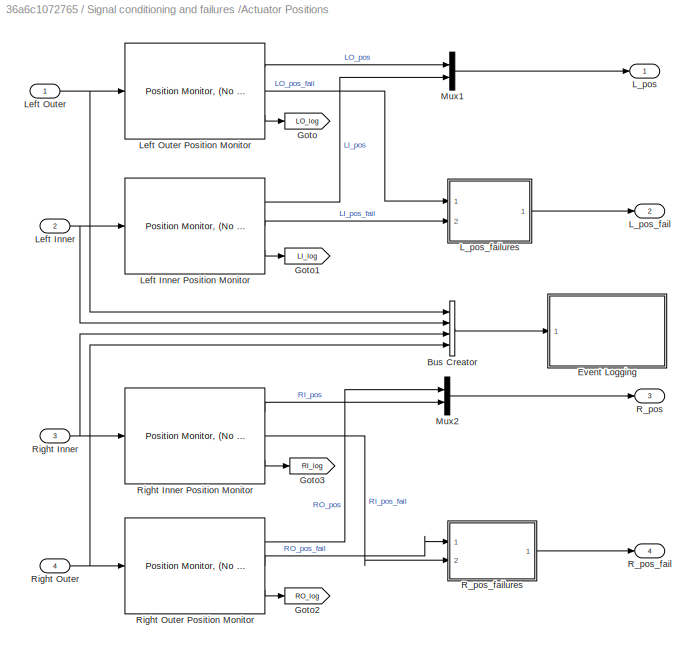
BLOCK [SubSystem] Signal conditioning and failures /Actuator Positions
  Ports = [4, 4]
  RequestExecContextInheritance = off
  Variant = off
BLOCK [BusCreator] Signal conditioning and failures /Actuator Positions/Bus Creator
  DisplayOption = bar
  InheritFromInputs = on
  Inputs = 4
  Ports = [4, 1]
BLOCK [SubSystem] Signal conditioning and failures /Actuator Positions/Event Logging
  Ports = [1]
  RequestExecContextInheritance = off
  Variant = off
BLOCK [BusSelector] Signal conditioning and failures /Actuator Positions/Event Logging/Bus Selector
  OutputAsBus = off
  OutputSignals = signal1,signal2,signal3,signal4
  Ports = [1, 4]
BLOCK [From] Signal conditioning and failures /Actuator Positions/Event Logging/From
  CloseFcn = tagdialog Close
  GotoTag = LO_log
  TagVisibility = global
BLOCK [From] Signal conditioning and failures /Actuator Positions/Event Logging/From1
  CloseFcn = tagdialog Close
  GotoTag = LI_log
  TagVisibility = global
BLOCK [From] Signal conditioning and failures /Actuator Positions/Event Logging/From2
  CloseFcn = tagdialog Close
  GotoTag = RO_log
  TagVisibility = global
BLOCK [From] Signal conditioning and failures /Actuator Positions/Event Logging/From3
  CloseFcn = tagdialog Close
  GotoTag = RI_log
  TagVisibility = global
BLOCK [Inport] Signal conditioning and failures /Actuator Positions/Event Logging/In1
  IconDisplay = Port number
BLOCK [SubSystem] Signal conditioning and failures /Actuator Positions/Event Logging/Log LI Actuator Position Sensors
  Ports = [1, 0, 1]
  RequestExecContextInheritance = off
  TreatAsAtomicUnit = on
  Variant = off
BLOCK [EnablePort] Signal conditioning and failures /Actuator Positions/Event Logging/Log LI Actuator Position Sensors/Enable
  Ports = []
  PropagateVarSize = During execution
BLOCK [Inport] Signal conditioning and failures /Actuator Positions/Event Logging/Log LI Actuator Position Sensors/In1
  IconDisplay = Port number
BLOCK [ToWorkspace] Signal conditioning and failures /Actuator Positions/Event Logging/Log LI Actuator Position Sensors/To Workspace
  MaxDataPoints = inf
  Ports = [1]
  SampleTime = -1
  SaveFormat = Structure With Time
  VariableName = LI_log
BLOCK [SubSystem] Signal conditioning and failures /Actuator Positions/Event Logging/Log LO Actuator Position Sensors
  Ports = [1, 0, 1]
  RequestExecContextInheritance = off
  TreatAsAtomicUnit = on
  Variant = off
BLOCK [EnablePort] Signal conditioning and failures /Actuator Positions/Event Logging/Log LO Actuator Position Sensors/Enable
  Ports = []
  PropagateVarSize = During execution
BLOCK [Inport] Signal conditioning and failures /Actuator Positions/Event Logging/Log LO Actuator Position Sensors/In1
  IconDisplay = Port number
BLOCK [ToWorkspace] Signal conditioning and failures /Actuator Positions/Event Logging/Log LO Actuator Position Sensors/To Workspace
  MaxDataPoints = inf
  Ports = [1]
  SampleTime = -1
  SaveFormat = Structure With Time
  VariableName = LO_log
BLOCK [SubSystem] Signal conditioning and failures /Actuator Positions/Event Logging/Log RI Actuator Position Sensors
  Ports = [1, 0, 1]
  RequestExecContextInheritance = off
  TreatAsAtomicUnit = on
  Variant = off
BLOCK [EnablePort] Signal conditioning and failures /Actuator Positions/Event Logging/Log RI Actuator Position Sensors/Enable
  Ports = []
  PropagateVarSize = During execution
BLOCK [Inport] Signal conditioning and failures /Actuator Positions/Event Logging/Log RI Actuator Position Sensors/In1
  IconDisplay = Port number
BLOCK [ToWorkspace] Signal conditioning and failures /Actuator Positions/Event Logging/Log RI Actuator Position Sensors/To Workspace
  MaxDataPoints = inf
  Ports = [1]
  SampleTime = -1
  SaveFormat = Structure With Time
  VariableName = RI_log
BLOCK [SubSystem] Signal conditioning and failures /Actuator Positions/Event Logging/Log RO Actuator Position Sensors
  Ports = [1, 0, 1]
  RequestExecContextInheritance = off
  TreatAsAtomicUnit = on
  Variant = off
BLOCK [EnablePort] Signal conditioning and failures /Actuator Positions/Event Logging/Log RO Actuator Position Sensors/Enable
  Ports = []
  PropagateVarSize = During execution
BLOCK [Inport] Signal conditioning and failures /Actuator Positions/Event Logging/Log RO Actuator Position Sensors/In1
  IconDisplay = Port number
BLOCK [ToWorkspace] Signal conditioning and failures /Actuator Positions/Event Logging/Log RO Actuator Position Sensors/To Workspace
  MaxDataPoints = inf
  Ports = [1]
  SampleTime = -1
  SaveFormat = Structure With Time
  VariableName = RO_log
BLOCK [Goto] Signal conditioning and failures /Actuator Positions/Goto
  GotoTag = LO_log
  TagVisibility = global
BLOCK [Goto] Signal conditioning and failures /Actuator Positions/Goto1
  GotoTag = LI_log
  TagVisibility = global
BLOCK [Goto] Signal conditioning and failures /Actuator Positions/Goto2
  GotoTag = RO_log
  TagVisibility = global
BLOCK [Goto] Signal conditioning and failures /Actuator Positions/Goto3
  GotoTag = RI_log
  TagVisibility = global
BLOCK [Outport] Signal conditioning and failures /Actuator Positions/L_pos
  IconDisplay = Port number
BLOCK [Outport] Signal conditioning and failures /Actuator Positions/L_pos_fail
  IconDisplay = Port number
  Port = 2
BLOCK [SubSystem] Signal conditioning and failures /Actuator Positions/L_pos_failures
  Ports = [2, 1]
  RequestExecContextInheritance = off
  Variant = off
BLOCK [Inport] Signal conditioning and failures /Actuator Positions/L_pos_failures/In1
  IconDisplay = Port number
BLOCK [Inport] Signal conditioning and failures /Actuator Positions/L_pos_failures/In2
  IconDisplay = Port number
  Port = 2
BLOCK [Mux] Signal conditioning and failures /Actuator Positions/L_pos_failures/Mux1
  DisplayOption = bar
  Inputs = 2
  Ports = [2, 1]
BLOCK [Outport] Signal conditioning and failures /Actuator Positions/L_pos_failures/Out1
  IconDisplay = Port number
BLOCK [Inport] Signal conditioning and failures /Actuator Positions/Left Inner
  IconDisplay = Port number
  Port = 2
BLOCK [Reference] Signal conditioning and failures /Actuator Positions/Left Inner Position Monitor  REF=sf_aircraft_screen_library/Position Monitor,  (lib defined in slx_a8711e03219c)
(No Filter)
  Ports = [1, 3]
  SourceBlock = sf_aircraft_screen_library/Position Monitor,\n(No Filter)
  SourceProductBaseCode = SF
  SourceProductName = Stateflow
  SourceType = SubSystem
BLOCK [Inport] Signal conditioning and failures /Actuator Positions/Left Outer
  IconDisplay = Port number
BLOCK [Reference] Signal conditioning and failures /Actuator Positions/Left Outer Position Monitor  REF=sf_aircraft_screen_library/Position Monitor,  (lib defined in slx_a8711e03219c)
(No Filter)
  Ports = [1, 3]
  SourceBlock = sf_aircraft_screen_library/Position Monitor,\n(No Filter)
  SourceProductBaseCode = SF
  SourceProductName = Stateflow
  SourceType = SubSystem
BLOCK [Mux] Signal conditioning and failures /Actuator Positions/Mux1
  DisplayOption = bar
  Inputs = 2
  Ports = [2, 1]
BLOCK [Mux] Signal conditioning and failures /Actuator Positions/Mux2
  DisplayOption = bar
  Inputs = 2
  Ports = [2, 1]
BLOCK [Outport] Signal conditioning and failures /Actuator Positions/R_pos
  IconDisplay = Port number
  Port = 3
BLOCK [Outport] Signal conditioning and failures /Actuator Positions/R_pos_fail
  IconDisplay = Port number
  Port = 4
BLOCK [SubSystem] Signal conditioning and failures /Actuator Positions/R_pos_failures
  Ports = [2, 1]
  RequestExecContextInheritance = off
  Variant = off
BLOCK [Inport] Signal conditioning and failures /Actuator Positions/R_pos_failures/In1
  IconDisplay = Port number
BLOCK [Inport] Signal conditioning and failures /Actuator Positions/R_pos_failures/In2
  IconDisplay = Port number
  Port = 2
BLOCK [Mux] Signal conditioning and failures /Actuator Positions/R_pos_failures/Mux1
  DisplayOption = bar
  Inputs = 2
  Ports = [2, 1]
BLOCK [Outport] Signal conditioning and failures /Actuator Positions/R_pos_failures/Out1
  IconDisplay = Port number
BLOCK [Inport] Signal conditioning and failures /Actuator Positions/Right Inner
  IconDisplay = Port number
  Port = 3
BLOCK [Reference] Signal conditioning and failures /Actuator Positions/Right Inner Position Monitor  REF=sf_aircraft_screen_library/Position Monitor,  (lib defined in slx_a8711e03219c)
(No Filter)
  Ports = [1, 3]
  SourceBlock = sf_aircraft_screen_library/Position Monitor,\n(No Filter)
  SourceProductBaseCode = SF
  SourceProductName = Stateflow
  SourceType = SubSystem
BLOCK [Inport] Signal conditioning and failures /Actuator Positions/Right Outer
  IconDisplay = Port number
  Port = 4
BLOCK [Reference] Signal conditioning and failures /Actuator Positions/Right Outer Position Monitor  REF=sf_aircraft_screen_library/Position Monitor,  (lib defined in slx_a8711e03219c)
(No Filter)
  Ports = [1, 3]
  SourceBlock = sf_aircraft_screen_library/Position Monitor,\n(No Filter)
  SourceProductBaseCode = SF
  SourceProductName = Stateflow
  SourceType = SubSystem
BLOCK [BusCreator] Signal conditioning and failures /Bus Creator1
  DisplayOption = bar
  InheritFromInputs = on
  Inputs = 8
  NonVirtualBus = on
  OutDataTypeStr = Bus: PositionBus
  Ports = [8, 1]
BLOCK [Demux] Signal conditioning and failures /Demux
  DisplayOption = bar
  Ports = [1, 4]
BLOCK [SubSystem] Signal conditioning and failures /Hydraulic Pressures
  Ports = [0, 4]
  RequestExecContextInheritance = off
  Variant = off
BLOCK [BusCreator] Signal conditioning and failures /Hydraulic Pressures/Bus Creator
  DisplayOption = bar
  InheritFromInputs = on
  Inputs = 3
  Ports = [3, 1]
BLOCK [SubSystem] Signal conditioning and failures /Hydraulic Pressures/Event Logging
  Ports = [1]
  RequestExecContextInheritance = off
  Variant = off
BLOCK [BusSelector] Signal conditioning and failures /Hydraulic Pressures/Event Logging/Bus Selector
  OutputAsBus = off
  OutputSignals = signal1,signal2,signal3
  Ports = [1, 3]
BLOCK [From] Signal conditioning and failures /Hydraulic Pressures/Event Logging/From
  CloseFcn = tagdialog Close
  GotoTag = H1_log
  TagVisibility = global
BLOCK [From] Signal conditioning and failures /Hydraulic Pressures/Event Logging/From1
  CloseFcn = tagdialog Close
  GotoTag = H2_log
  TagVisibility = global
BLOCK [From] Signal conditioning and failures /Hydraulic Pressures/Event Logging/From2
  CloseFcn = tagdialog Close
  GotoTag = H3_log
  TagVisibility = global
BLOCK [Inport] Signal conditioning and failures /Hydraulic Pressures/Event Logging/In1
  IconDisplay = Port number
BLOCK [SubSystem] Signal conditioning and failures /Hydraulic Pressures/Event Logging/Log Hydraulic System 1 Sensors
  Ports = [1, 0, 1]
  RequestExecContextInheritance = off
  TreatAsAtomicUnit = on
  Variant = off
BLOCK [EnablePort] Signal conditioning and failures /Hydraulic Pressures/Event Logging/Log Hydraulic System 1 Sensors/Enable
  Ports = []
  PropagateVarSize = During execution
BLOCK [Inport] Signal conditioning and failures /Hydraulic Pressures/Event Logging/Log Hydraulic System 1 Sensors/In1
  IconDisplay = Port number
BLOCK [ToWorkspace] Signal conditioning and failures /Hydraulic Pressures/Event Logging/Log Hydraulic System 1 Sensors/To Workspace
  MaxDataPoints = inf
  Ports = [1]
  SampleTime = -1
  SaveFormat = Structure With Time
  VariableName = H1_log
BLOCK [SubSystem] Signal conditioning and failures /Hydraulic Pressures/Event Logging/Log Hydraulic System 2 Sensors
  Ports = [1, 0, 1]
  RequestExecContextInheritance = off
  TreatAsAtomicUnit = on
  Variant = off
BLOCK [EnablePort] Signal conditioning and failures /Hydraulic Pressures/Event Logging/Log Hydraulic System 2 Sensors/Enable
  Ports = []
  PropagateVarSize = During execution
BLOCK [Inport] Signal conditioning and failures /Hydraulic Pressures/Event Logging/Log Hydraulic System 2 Sensors/In1
  IconDisplay = Port number
BLOCK [ToWorkspace] Signal conditioning and failures /Hydraulic Pressures/Event Logging/Log Hydraulic System 2 Sensors/To Workspace
  MaxDataPoints = inf
  Ports = [1]
  SampleTime = -1
  SaveFormat = Structure With Time
  VariableName = H2_log
BLOCK [SubSystem] Signal conditioning and failures /Hydraulic Pressures/Event Logging/Log Hydraulic System 3 Sensors
  Ports = [1, 0, 1]
  RequestExecContextInheritance = off
  TreatAsAtomicUnit = on
  Variant = off
BLOCK [EnablePort] Signal conditioning and failures /Hydraulic Pressures/Event Logging/Log Hydraulic System 3 Sensors/Enable
  Ports = []
  PropagateVarSize = During execution
BLOCK [Inport] Signal conditioning and failures /Hydraulic Pressures/Event Logging/Log Hydraulic System 3 Sensors/In1
  IconDisplay = Port number
BLOCK [ToWorkspace] Signal conditioning and failures /Hydraulic Pressures/Event Logging/Log Hydraulic System 3 Sensors/To Workspace
  MaxDataPoints = inf
  Ports = [1]
  SampleTime = -1
  SaveFormat = Structure With Time
  VariableName = H3_log
BLOCK [Goto] Signal conditioning and failures /Hydraulic Pressures/Goto
  GotoTag = H1_log
  TagVisibility = global
BLOCK [Goto] Signal conditioning and failures /Hydraulic Pressures/Goto1
  GotoTag = H2_log
  TagVisibility = global
BLOCK [Goto] Signal conditioning and failures /Hydraulic Pressures/Goto2
  GotoTag = H3_log
  TagVisibility = global
BLOCK [Outport] Signal conditioning and failures /Hydraulic Pressures/H1_press
  IconDisplay = Port number
BLOCK [Outport] Signal conditioning and failures /Hydraulic Pressures/H2_press
  IconDisplay = Port number
  Port = 2
BLOCK [Outport] Signal conditioning and failures /Hydraulic Pressures/H3_press
  IconDisplay = Port number
  Port = 3
BLOCK [SubSystem] Signal conditioning and failures /Hydraulic Pressures/H_failures
  Ports = [3, 1]
  RequestExecContextInheritance = off
  Variant = off
BLOCK [Inport] Signal conditioning and failures /Hydraulic Pressures/H_failures/In1
  IconDisplay = Port number
BLOCK [Inport] Signal conditioning and failures /Hydraulic Pressures/H_failures/In2
  IconDisplay = Port number
  Port = 2
BLOCK [Inport] Signal conditioning and failures /Hydraulic Pressures/H_failures/In3
  IconDisplay = Port number
  Port = 3
BLOCK [Mux] Signal conditioning and failures /Hydraulic Pressures/H_failures/Mux
  DisplayOption = bar
  Inputs = 3
  Ports = [3, 1]
BLOCK [Outport] Signal conditioning and failures /Hydraulic Pressures/H_failures/Out1
  IconDisplay = Port number
BLOCK [Reference] Signal conditioning and failures /Hydraulic Pressures/Hydraulic System 1 Monitor  REF=sf_aircraft_screen_library/Hydraulic Monitor,  (lib defined in slx_a8711e03219c)
(No Filter)
  Ports = [1, 3]
  SourceBlock = sf_aircraft_screen_library/Hydraulic Monitor,\n(No Filter)
  SourceProductBaseCode = SF
  SourceProductName = Stateflow
  SourceType = SubSystem
BLOCK [Reference] Signal conditioning and failures /Hydraulic Pressures/Hydraulic System 2 Monitor  REF=sf_aircraft_screen_library/Hydraulic Monitor,  (lib defined in slx_a8711e03219c)
(No Filter)
  Ports = [1, 3]
  SourceBlock = sf_aircraft_screen_library/Hydraulic Monitor,\n(No Filter)
  SourceProductBaseCode = SF
  SourceProductName = Stateflow
  SourceType = SubSystem
BLOCK [Reference] Signal conditioning and failures /Hydraulic Pressures/Hydraulic System 3 Monitor  REF=sf_aircraft_screen_library/Hydraulic Monitor,  (lib defined in slx_a8711e03219c)
(No Filter)
  Ports = [1, 3]
  SourceBlock = sf_aircraft_screen_library/Hydraulic Monitor,\n(No Filter)
  SourceProductBaseCode = SF
  SourceProductName = Stateflow
  SourceType = SubSystem
BLOCK [SubSystem] Signal conditioning and failures /Hydraulic Pressures/Measured Hydraulic system 1 pressures
  Ports = [0, 1]
  RequestExecContextInheritance = off
  Variant = off
BLOCK [SubSystem] Signal conditioning and failures /Hydraulic Pressures/Measured Hydraulic system 1 pressures/Hydraulic pressure
  Ports = [0, 1]
  RequestExecContextInheritance = off
  Variant = off
BLOCK [Constant] Signal conditioning and failures /Hydraulic Pressures/Measured Hydraulic system 1 pressures/Hydraulic pressure/H1_fail
  OutDataTypeStr = boolean
  Value = 0
BLOCK [Outport] Signal conditioning and failures /Hydraulic Pressures/Measured Hydraulic system 1 pressures/Hydraulic pressure/Out1
  IconDisplay = Port number
BLOCK [SubSystem] Signal conditioning and failures /Hydraulic Pressures/Measured Hydraulic system 1 pressures/Hydraulic pressure/Outlier//failure
  ClipboardFcn = sigbuilder_block('clipboard');
  CloseFcn = sigbuilder_block('close');
  ContinueFcn = sigbuilder_block('continue')
  CopyFcn = sigbuilder_block('copy');
  DeleteFcn = sigbuilder_block('delete');
  LoadFcn = sigbuilder_block('load');
  MaskHideContents = on
  ModelCloseFcn = sigbuilder_block('modelClose');
  NameChangeFcn = sigbuilder_block('namechange');
  OpenFcn = sigbuilder_block('open',[81 97.5 519.75 399.75 ]);
  PauseFcn = sigbuilder_block('pause')
  Ports = [0, 1]
  PreSaveFcn = sigbuilder_block('preSave');
  RequestExecContextInheritance = off
  StartFcn = sigbuilder_block('start');
  StopFcn = sigbuilder_block('stop');
  Tag = STV Subsys
  Variant = off
BLOCK [Demux] Signal conditioning and failures /Hydraulic Pressures/Measured Hydraulic system 1 pressures/Hydraulic pressure/Outlier//failure/Demux
  Outputs = 1
  Ports = [1, 1]
  Tag = STV Demux
BLOCK [FromWorkspace] Signal conditioning and failures /Hydraulic Pressures/Measured Hydraulic system 1 pressures/Hydraulic pressure/Outlier//failure/FromWs
  SampleTime = 0
  Tag = STV FromWs
  VariableName = tuvar
BLOCK [Outport] Signal conditioning and failures /Hydraulic Pressures/Measured Hydraulic system 1 pressures/Hydraulic pressure/Outlier//failure/Signal 1
  IconDisplay = Port number
  Tag = STV Outport
BLOCK [Constant] Signal conditioning and failures /Hydraulic Pressures/Measured Hydraulic system 1 pressures/Hydraulic pressure/Pump Pressure
  Value = 1000
BLOCK [Switch] Signal conditioning and failures /Hydraulic Pressures/Measured Hydraulic system 1 pressures/Hydraulic pressure/Switch
  Criteria = u2 ~= 0
  InputSameDT = off
BLOCK [Mux] Signal conditioning and failures /Hydraulic Pressures/Measured Hydraulic system 1 pressures/Mux
  DisplayOption = bar
  Inputs = 3
  Ports = [3, 1]
BLOCK [Outport] Signal conditioning and failures /Hydraulic Pressures/Measured Hydraulic system 1 pressures/Out
  IconDisplay = Port number
BLOCK [SubSystem] Signal conditioning and failures /Hydraulic Pressures/Measured Hydraulic system 1 pressures/pressure reading1
  Ports = [1, 1]
  RequestExecContextInheritance = off
  Variant = off
BLOCK [Reference] Signal conditioning and failures /Hydraulic Pressures/Measured Hydraulic system 1 pressures/pressure reading1/Band-Limited White Noise  REF=simulink/Sources/Band-Limited
White Noise
  Ports = [0, 1]
  SourceBlock = simulink/Sources/Band-Limited\nWhite Noise
  SourceProductBaseCode = SL
  SourceProductName = Simulink
  SourceType = Band-Limited White Noise.
BLOCK [Outport] Signal conditioning and failures /Hydraulic Pressures/Measured Hydraulic system 1 pressures/pressure reading1/Out1
  IconDisplay = Port number
BLOCK [Sum] Signal conditioning and failures /Hydraulic Pressures/Measured Hydraulic system 1 pressures/pressure reading1/Sum
  IconShape = round
  InputSameDT = off
  Inputs = |++
  OutDataTypeStr = Inherit: Inherit via internal rule
  Ports = [2, 1]
BLOCK [Inport] Signal conditioning and failures /Hydraulic Pressures/Measured Hydraulic system 1 pressures/pressure reading1/pressure
  IconDisplay = Port number
BLOCK [SubSystem] Signal conditioning and failures /Hydraulic Pressures/Measured Hydraulic system 1 pressures/pressure reading2
  Ports = [1, 1]
  RequestExecContextInheritance = off
  Variant = off
BLOCK [Reference] Signal conditioning and failures /Hydraulic Pressures/Measured Hydraulic system 1 pressures/pressure reading2/Band-Limited White Noise  REF=simulink/Sources/Band-Limited
White Noise
  Ports = [0, 1]
  SourceBlock = simulink/Sources/Band-Limited\nWhite Noise
  SourceProductBaseCode = SL
  SourceProductName = Simulink
  SourceType = Band-Limited White Noise.
BLOCK [Outport] Signal conditioning and failures /Hydraulic Pressures/Measured Hydraulic system 1 pressures/pressure reading2/Out1
  IconDisplay = Port number
BLOCK [Sum] Signal conditioning and failures /Hydraulic Pressures/Measured Hydraulic system 1 pressures/pressure reading2/Sum1
  IconShape = round
  InputSameDT = off
  Inputs = |++
  OutDataTypeStr = Inherit: Inherit via internal rule
  Ports = [2, 1]
BLOCK [Inport] Signal conditioning and failures /Hydraulic Pressures/Measured Hydraulic system 1 pressures/pressure reading2/pressure
  IconDisplay = Port number
BLOCK [SubSystem] Signal conditioning and failures /Hydraulic Pressures/Measured Hydraulic system 1 pressures/pressure reading3
  Ports = [1, 1]
  RequestExecContextInheritance = off
  Variant = off
BLOCK [Reference] Signal conditioning and failures /Hydraulic Pressures/Measured Hydraulic system 1 pressures/pressure reading3/Band-Limited White Noise  REF=simulink/Sources/Band-Limited
White Noise
  Ports = [0, 1]
  SourceBlock = simulink/Sources/Band-Limited\nWhite Noise
  SourceProductBaseCode = SL
  SourceProductName = Simulink
  SourceType = Band-Limited White Noise.
BLOCK [Outport] Signal conditioning and failures /Hydraulic Pressures/Measured Hydraulic system 1 pressures/pressure reading3/Out1
  IconDisplay = Port number
BLOCK [Sum] Signal conditioning and failures /Hydraulic Pressures/Measured Hydraulic system 1 pressures/pressure reading3/Sum1
  IconShape = round
  InputSameDT = off
  Inputs = |++
  OutDataTypeStr = Inherit: Inherit via internal rule
  Ports = [2, 1]
BLOCK [Inport] Signal conditioning and failures /Hydraulic Pressures/Measured Hydraulic system 1 pressures/pressure reading3/pressure
  IconDisplay = Port number
BLOCK [SubSystem] Signal conditioning and failures /Hydraulic Pressures/Measured Hydraulic system 2 pressures
  Ports = [0, 1]
  RequestExecContextInheritance = off
  Variant = off
BLOCK [SubSystem] Signal conditioning and failures /Hydraulic Pressures/Measured Hydraulic system 2 pressures/Hydraulic pressure
  Ports = [0, 1]
  RequestExecContextInheritance = off
  Variant = off
BLOCK [Constant] Signal conditioning and failures /Hydraulic Pressures/Measured Hydraulic system 2 pressures/Hydraulic pressure/H2_fail
  OutDataTypeStr = boolean
  Value = 0
BLOCK [Outport] Signal conditioning and failures /Hydraulic Pressures/Measured Hydraulic system 2 pressures/Hydraulic pressure/Out1
  IconDisplay = Port number
BLOCK [SubSystem] Signal conditioning and failures /Hydraulic Pressures/Measured Hydraulic system 2 pressures/Hydraulic pressure/Outlier//failure
  ClipboardFcn = sigbuilder_block('clipboard');
  CloseFcn = sigbuilder_block('close');
  ContinueFcn = sigbuilder_block('continue')
  CopyFcn = sigbuilder_block('copy');
  DeleteFcn = sigbuilder_block('delete');
  LoadFcn = sigbuilder_block('load');
  MaskHideContents = on
  ModelCloseFcn = sigbuilder_block('modelClose');
  NameChangeFcn = sigbuilder_block('namechange');
  OpenFcn = sigbuilder_block('open',[81 97.5 519.75 399.75 ]);
  PauseFcn = sigbuilder_block('pause')
  Ports = [0, 1]
  PreSaveFcn = sigbuilder_block('preSave');
  RequestExecContextInheritance = off
  StartFcn = sigbuilder_block('start');
  StopFcn = sigbuilder_block('stop');
  Tag = STV Subsys
  Variant = off
BLOCK [Demux] Signal conditioning and failures /Hydraulic Pressures/Measured Hydraulic system 2 pressures/Hydraulic pressure/Outlier//failure/Demux
  Outputs = 1
  Ports = [1, 1]
  Tag = STV Demux
BLOCK [FromWorkspace] Signal conditioning and failures /Hydraulic Pressures/Measured Hydraulic system 2 pressures/Hydraulic pressure/Outlier//failure/FromWs
  SampleTime = 0
  Tag = STV FromWs
  VariableName = tuvar
BLOCK [Outport] Signal conditioning and failures /Hydraulic Pressures/Measured Hydraulic system 2 pressures/Hydraulic pressure/Outlier//failure/Signal 1
  IconDisplay = Port number
  Tag = STV Outport
BLOCK [Constant] Signal conditioning and failures /Hydraulic Pressures/Measured Hydraulic system 2 pressures/Hydraulic pressure/Pump Pressure
  Value = 1000
BLOCK [Switch] Signal conditioning and failures /Hydraulic Pressures/Measured Hydraulic system 2 pressures/Hydraulic pressure/Switch
  Criteria = u2 ~= 0
  InputSameDT = off
BLOCK [Mux] Signal conditioning and failures /Hydraulic Pressures/Measured Hydraulic system 2 pressures/Mux
  DisplayOption = bar
  Inputs = 3
  Ports = [3, 1]
BLOCK [Outport] Signal conditioning and failures /Hydraulic Pressures/Measured Hydraulic system 2 pressures/Out
  IconDisplay = Port number
BLOCK [SubSystem] Signal conditioning and failures /Hydraulic Pressures/Measured Hydraulic system 2 pressures/pressure reading1
  Ports = [1, 1]
  RequestExecContextInheritance = off
  Variant = off
BLOCK [Reference] Signal conditioning and failures /Hydraulic Pressures/Measured Hydraulic system 2 pressures/pressure reading1/Band-Limited White Noise  REF=simulink/Sources/Band-Limited
White Noise
  Ports = [0, 1]
  SourceBlock = simulink/Sources/Band-Limited\nWhite Noise
  SourceProductBaseCode = SL
  SourceProductName = Simulink
  SourceType = Band-Limited White Noise.
BLOCK [Outport] Signal conditioning and failures /Hydraulic Pressures/Measured Hydraulic system 2 pressures/pressure reading1/Out1
  IconDisplay = Port number
BLOCK [Sum] Signal conditioning and failures /Hydraulic Pressures/Measured Hydraulic system 2 pressures/pressure reading1/Sum
  IconShape = round
  InputSameDT = off
  Inputs = |++
  OutDataTypeStr = Inherit: Inherit via internal rule
  Ports = [2, 1]
BLOCK [Inport] Signal conditioning and failures /Hydraulic Pressures/Measured Hydraulic system 2 pressures/pressure reading1/pressure
  IconDisplay = Port number
BLOCK [SubSystem] Signal conditioning and failures /Hydraulic Pressures/Measured Hydraulic system 2 pressures/pressure reading2
  Ports = [1, 1]
  RequestExecContextInheritance = off
  Variant = off
BLOCK [Reference] Signal conditioning and failures /Hydraulic Pressures/Measured Hydraulic system 2 pressures/pressure reading2/Band-Limited White Noise  REF=simulink/Sources/Band-Limited
White Noise
  Ports = [0, 1]
  SourceBlock = simulink/Sources/Band-Limited\nWhite Noise
  SourceProductBaseCode = SL
  SourceProductName = Simulink
  SourceType = Band-Limited White Noise.
BLOCK [Outport] Signal conditioning and failures /Hydraulic Pressures/Measured Hydraulic system 2 pressures/pressure reading2/Out1
  IconDisplay = Port number
BLOCK [Sum] Signal conditioning and failures /Hydraulic Pressures/Measured Hydraulic system 2 pressures/pressure reading2/Sum1
  IconShape = round
  InputSameDT = off
  Inputs = |++
  OutDataTypeStr = Inherit: Inherit via internal rule
  Ports = [2, 1]
BLOCK [Inport] Signal conditioning and failures /Hydraulic Pressures/Measured Hydraulic system 2 pressures/pressure reading2/pressure
  IconDisplay = Port number
BLOCK [SubSystem] Signal conditioning and failures /Hydraulic Pressures/Measured Hydraulic system 2 pressures/pressure reading3
  Ports = [1, 1]
  RequestExecContextInheritance = off
  Variant = off
BLOCK [Reference] Signal conditioning and failures /Hydraulic Pressures/Measured Hydraulic system 2 pressures/pressure reading3/Band-Limited White Noise  REF=simulink/Sources/Band-Limited
White Noise
  Ports = [0, 1]
  SourceBlock = simulink/Sources/Band-Limited\nWhite Noise
  SourceProductBaseCode = SL
  SourceProductName = Simulink
  SourceType = Band-Limited White Noise.
BLOCK [Outport] Signal conditioning and failures /Hydraulic Pressures/Measured Hydraulic system 2 pressures/pressure reading3/Out1
  IconDisplay = Port number
BLOCK [Sum] Signal conditioning and failures /Hydraulic Pressures/Measured Hydraulic system 2 pressures/pressure reading3/Sum1
  IconShape = round
  InputSameDT = off
  Inputs = |++
  OutDataTypeStr = Inherit: Inherit via internal rule
  Ports = [2, 1]
BLOCK [Inport] Signal conditioning and failures /Hydraulic Pressures/Measured Hydraulic system 2 pressures/pressure reading3/pressure
  IconDisplay = Port number
BLOCK [SubSystem] Signal conditioning and failures /Hydraulic Pressures/Measured Hydraulic system 3 pressures
  Ports = [0, 1]
  RequestExecContextInheritance = off
  Variant = off
BLOCK [SubSystem] Signal conditioning and failures /Hydraulic Pressures/Measured Hydraulic system 3 pressures/Hydraulic pressure
  Ports = [0, 1]
  RequestExecContextInheritance = off
  Variant = off
BLOCK [Constant] Signal conditioning and failures /Hydraulic Pressures/Measured Hydraulic system 3 pressures/Hydraulic pressure/H3_fail
  OutDataTypeStr = boolean
  Value = 0
BLOCK [Outport] Signal conditioning and failures /Hydraulic Pressures/Measured Hydraulic system 3 pressures/Hydraulic pressure/Out1
  IconDisplay = Port number
BLOCK [SubSystem] Signal conditioning and failures /Hydraulic Pressures/Measured Hydraulic system 3 pressures/Hydraulic pressure/Outlier//failure
  ClipboardFcn = sigbuilder_block('clipboard');
  CloseFcn = sigbuilder_block('close');
  ContinueFcn = sigbuilder_block('continue')
  CopyFcn = sigbuilder_block('copy');
  DeleteFcn = sigbuilder_block('delete');
  LoadFcn = sigbuilder_block('load');
  MaskHideContents = on
  ModelCloseFcn = sigbuilder_block('modelClose');
  NameChangeFcn = sigbuilder_block('namechange');
  OpenFcn = sigbuilder_block('open',[81 97.5 519.75 399.75 ]);
  PauseFcn = sigbuilder_block('pause')
  Ports = [0, 1]
  PreSaveFcn = sigbuilder_block('preSave');
  RequestExecContextInheritance = off
  StartFcn = sigbuilder_block('start');
  StopFcn = sigbuilder_block('stop');
  Tag = STV Subsys
  Variant = off
BLOCK [Demux] Signal conditioning and failures /Hydraulic Pressures/Measured Hydraulic system 3 pressures/Hydraulic pressure/Outlier//failure/Demux
  Outputs = 1
  Ports = [1, 1]
  Tag = STV Demux
BLOCK [FromWorkspace] Signal conditioning and failures /Hydraulic Pressures/Measured Hydraulic system 3 pressures/Hydraulic pressure/Outlier//failure/FromWs
  SampleTime = 0
  Tag = STV FromWs
  VariableName = tuvar
BLOCK [Outport] Signal conditioning and failures /Hydraulic Pressures/Measured Hydraulic system 3 pressures/Hydraulic pressure/Outlier//failure/Signal 1
  IconDisplay = Port number
  Tag = STV Outport
BLOCK [Constant] Signal conditioning and failures /Hydraulic Pressures/Measured Hydraulic system 3 pressures/Hydraulic pressure/Pump Pressure
  Value = 1000
BLOCK [Switch] Signal conditioning and failures /Hydraulic Pressures/Measured Hydraulic system 3 pressures/Hydraulic pressure/Switch
  Criteria = u2 ~= 0
  InputSameDT = off
BLOCK [Mux] Signal conditioning and failures /Hydraulic Pressures/Measured Hydraulic system 3 pressures/Mux
  DisplayOption = bar
  Inputs = 3
  Ports = [3, 1]
BLOCK [Outport] Signal conditioning and failures /Hydraulic Pressures/Measured Hydraulic system 3 pressures/Out
  IconDisplay = Port number
BLOCK [SubSystem] Signal conditioning and failures /Hydraulic Pressures/Measured Hydraulic system 3 pressures/pressure reading1
  Ports = [1, 1]
  RequestExecContextInheritance = off
  Variant = off
BLOCK [Reference] Signal conditioning and failures /Hydraulic Pressures/Measured Hydraulic system 3 pressures/pressure reading1/Band-Limited White Noise  REF=simulink/Sources/Band-Limited
White Noise
  Ports = [0, 1]
  SourceBlock = simulink/Sources/Band-Limited\nWhite Noise
  SourceProductBaseCode = SL
  SourceProductName = Simulink
  SourceType = Band-Limited White Noise.
BLOCK [Outport] Signal conditioning and failures /Hydraulic Pressures/Measured Hydraulic system 3 pressures/pressure reading1/Out1
  IconDisplay = Port number
BLOCK [Sum] Signal conditioning and failures /Hydraulic Pressures/Measured Hydraulic system 3 pressures/pressure reading1/Sum
  IconShape = round
  InputSameDT = off
  Inputs = |++
  OutDataTypeStr = Inherit: Inherit via internal rule
  Ports = [2, 1]
BLOCK [Inport] Signal conditioning and failures /Hydraulic Pressures/Measured Hydraulic system 3 pressures/pressure reading1/pressure
  IconDisplay = Port number
BLOCK [SubSystem] Signal conditioning and failures /Hydraulic Pressures/Measured Hydraulic system 3 pressures/pressure reading2
  Ports = [1, 1]
  RequestExecContextInheritance = off
  Variant = off
BLOCK [Reference] Signal conditioning and failures /Hydraulic Pressures/Measured Hydraulic system 3 pressures/pressure reading2/Band-Limited White Noise  REF=simulink/Sources/Band-Limited
White Noise
  Ports = [0, 1]
  SourceBlock = simulink/Sources/Band-Limited\nWhite Noise
  SourceProductBaseCode = SL
  SourceProductName = Simulink
  SourceType = Band-Limited White Noise.
BLOCK [Outport] Signal conditioning and failures /Hydraulic Pressures/Measured Hydraulic system 3 pressures/pressure reading2/Out1
  IconDisplay = Port number
BLOCK [Sum] Signal conditioning and failures /Hydraulic Pressures/Measured Hydraulic system 3 pressures/pressure reading2/Sum1
  IconShape = round
  InputSameDT = off
  Inputs = |++
  OutDataTypeStr = Inherit: Inherit via internal rule
  Ports = [2, 1]
BLOCK [Inport] Signal conditioning and failures /Hydraulic Pressures/Measured Hydraulic system 3 pressures/pressure reading2/pressure
  IconDisplay = Port number
BLOCK [SubSystem] Signal conditioning and failures /Hydraulic Pressures/Measured Hydraulic system 3 pressures/pressure reading3
  Ports = [1, 1]
  RequestExecContextInheritance = off
  Variant = off
BLOCK [Reference] Signal conditioning and failures /Hydraulic Pressures/Measured Hydraulic system 3 pressures/pressure reading3/Band-Limited White Noise  REF=simulink/Sources/Band-Limited
White Noise
  Ports = [0, 1]
  SourceBlock = simulink/Sources/Band-Limited\nWhite Noise
  SourceProductBaseCode = SL
  SourceProductName = Simulink
  SourceType = Band-Limited White Noise.
BLOCK [Outport] Signal conditioning and failures /Hydraulic Pressures/Measured Hydraulic system 3 pressures/pressure reading3/Out1
  IconDisplay = Port number
BLOCK [Sum] Signal conditioning and failures /Hydraulic Pressures/Measured Hydraulic system 3 pressures/pressure reading3/Sum1
  IconShape = round
  InputSameDT = off
  Inputs = |++
  OutDataTypeStr = Inherit: Inherit via internal rule
  Ports = [2, 1]
BLOCK [Inport] Signal conditioning and failures /Hydraulic Pressures/Measured Hydraulic system 3 pressures/pressure reading3/pressure
  IconDisplay = Port number
BLOCK [Outport] Signal conditioning and failures /Hydraulic Pressures/low_press
  IconDisplay = Port number
  Port = 4
BLOCK [Inport] Signal conditioning and failures /In1
  IconDisplay = Port number
BLOCK [Outport] Signal conditioning and failures /pos_bus
  IconDisplay = Port number
BLOCK [Scope] elevator positions
  IOType = viewer
  NumInputPorts = 1
  Ports = []
  ScopeSpecificationString = C++SS(StrPVP('Location','[645, 230, 969, 469]'),StrPVP('Open','off'),MxPVP('AxesTitles',53,'struct(''axes1'',''%<SignalLabel>'')'),StrPVP('ShowLegends','off'),StrPVP('TimeRange','20'),StrPVP('YMin','-1.5'),StrPVP('YMax','1.5'),StrPVP('MaxDataPoints','7500'),StrPVP('ScrollMode','on'),StrPVP('LimitDataPoints','on'),StrPVP('DataFormat','Array'),StrPVP('Decimation','1'),StrPVP('BlockParamSampleInput',...<+7ch>
BLOCK [Scope] modes
  IOType = viewer
  NumInputPorts = 1
  Ports = []
  ScopeSpecificationString = C++SS(StrPVP('Location','[188, 365, 512, 604]'),StrPVP('Open','off'),MxPVP('AxesTitles',53,'struct(''axes1'',''%<SignalLabel>'')'),StrPVP('ShowLegends','off'),StrPVP('TimeRange','20'),StrPVP('YMin','0'),StrPVP('YMax','4.5'),StrPVP('MaxDataPoints','7500'),StrPVP('ScrollMode','on'),StrPVP('LimitDataPoints','on'),StrPVP('DataFormat','Array'),StrPVP('Decimation','1'),StrPVP('BlockParamSampleInput','of...<+4ch>
ANNOTATION (root): <copyright redacted>
ANNOTATION Controller/Left Control Laws: We could add an additional control law that did not rely on the position measurements in case if all position sensors fail (& pressure OK) pilot could still fly plane.
ANNOTATION Controller/Right Control Laws: We could add an additional control law that did not have to rely on the position measurements in case if all position sensors fail (& pressure OK) pilot could still fly plane.
ANNOTATION Signal conditioning and failures : These could be 2/4 separate processors, and typically are not residing on the PFCUs
ANNOTATION Signal conditioning and failures /Hydraulic Pressures/H_failures: Send to Gauges for Display
NET Bus Creator:1 -> Controller:1, Plant:1
LINE Controller/Bus Selector1:1 -> Controller/Left Control Laws:1
LINE Controller/Bus Selector1:2 -> Controller/Right Control Laws:2
LINE Controller/Bus Selector:1 -> Controller/Mux1:1
LINE Controller/Bus Selector:2 -> Controller/Mux1:2
LINE Controller/Bus Selector:3 -> Controller/Mux2:1
LINE Controller/Bus Selector:4 -> Controller/Mux2:2
LINE Controller/Left Control Laws/Demux1:1 -> Controller/Left Control Laws/IO Control Law:1
LINE Controller/Left Control Laws/Demux1:2 -> Controller/Left Control Laws/Direct Link Control Law:2
LINE Controller/Left Control Laws/Demux:1 -> Controller/Left Control Laws/IO Control Law:enable
LINE Controller/Left Control Laws/Demux:2 -> Controller/Left Control Laws/Direct Link Control Law:enable
LINE Controller/Left Control Laws/Direct Link Control Law/Gain:1 -> Controller/Left Control Laws/Direct Link Control Law/Out1:1
LINE Controller/Left Control Laws/Direct Link Control Law/Sum:1 -> Controller/Left Control Laws/Direct Link Control Law/Gain:1
LINE Controller/Left Control Laws/Direct Link Control Law/pos:1 -> Controller/Left Control Laws/Direct Link Control Law/Sum:2
LINE Controller/Left Control Laws/Direct Link Control Law/set point:1 -> Controller/Left Control Laws/Direct Link Control Law/Sum:1
LINE Controller/Left Control Laws/Direct Link Control Law:1 -> Controller/Left Control Laws/selector:3
LINE Controller/Left Control Laws/IO Control Law/PID Controller:1 -> Controller/Left Control Laws/IO Control Law/Out1:1
LINE Controller/Left Control Laws/IO Control Law/Sum:1 -> Controller/Left Control Laws/IO Control Law/PID Controller:1
LINE Controller/Left Control Laws/IO Control Law/pos:1 -> Controller/Left Control Laws/IO Control Law/Sum:2
LINE Controller/Left Control Laws/IO Control Law/set point:1 -> Controller/Left Control Laws/IO Control Law/Sum:1
LINE Controller/Left Control Laws/IO Control Law:1 -> Controller/Left Control Laws/selector:2
LINE Controller/Left Control Laws/Subsystem/Constant1:1 -> Controller/Left Control Laws/Subsystem/Relational Operator1:2
LINE Controller/Left Control Laws/Subsystem/Constant:1 -> Controller/Left Control Laws/Subsystem/Relational Operator:2
LINE Controller/Left Control Laws/Subsystem/Demux:1 -> Controller/Left Control Laws/Subsystem/live:1
LINE Controller/Left Control Laws/Subsystem/Demux:2 -> Controller/Left Control Laws/Subsystem/Terminator:1
NET Controller/Left Control Laws/Subsystem/In1:1 -> Controller/Left Control Laws/Subsystem/Relational Operator1:1, Controller/Left Control Laws/Subsystem/Relational Operator:1
LINE Controller/Left Control Laws/Subsystem/Logical Operator:1 -> Controller/Left Control Laws/Subsystem/trigger:1
LINE Controller/Left Control Laws/Subsystem/Relational Operator1:1 -> Controller/Left Control Laws/Subsystem/Logical Operator:2
NET Controller/Left Control Laws/Subsystem/Relational Operator:1 -> Controller/Left Control Laws/Subsystem/Demux:1, Controller/Left Control Laws/Subsystem/Logical Operator:1
LINE Controller/Left Control Laws/Subsystem:1 -> Controller/Left Control Laws/selector:1
LINE Controller/Left Control Laws/Subsystem:2 -> Controller/Left Control Laws/Demux:1
LINE Controller/Left Control Laws/mode:1 -> Controller/Left Control Laws/Subsystem:1
LINE Controller/Left Control Laws/pos:1 -> Controller/Left Control Laws/Demux1:1
LINE Controller/Left Control Laws/selector/DL:1 -> Controller/Left Control Laws/selector/Switch:3
LINE Controller/Left Control Laws/selector/IO:1 -> Controller/Left Control Laws/selector/Switch:1
LINE Controller/Left Control Laws/selector/Switch:1 -> Controller/Left Control Laws/selector/Out1:1
LINE Controller/Left Control Laws/selector/live:1 -> Controller/Left Control Laws/selector/Switch:2
LINE Controller/Left Control Laws/selector:1 -> Controller/Left Control Laws/control point:1
NET Controller/Left Control Laws/set point:1 -> Controller/Left Control Laws/Direct Link Control Law:1, Controller/Left Control Laws/IO Control Law:2
LINE Controller/Left Control Laws:1 -> Controller/Mux:1
LINE Controller/Mux1:1 -> Controller/Left Control Laws:3
LINE Controller/Mux2:1 -> Controller/Right Control Laws:1
LINE Controller/Mux:1 -> Controller/control points:1
LINE Controller/Right Control Laws/Demux1:1 -> Controller/Right Control Laws/IO Control Law:1
LINE Controller/Right Control Laws/Demux1:2 -> Controller/Right Control Laws/Direct Link Control Law:2
LINE Controller/Right Control Laws/Demux:1 -> Controller/Right Control Laws/IO Control Law:enable
LINE Controller/Right Control Laws/Demux:2 -> Controller/Right Control Laws/Direct Link Control Law:enable
LINE Controller/Right Control Laws/Direct Link Control Law/Gain:1 -> Controller/Right Control Laws/Direct Link Control Law/Out1:1
LINE Controller/Right Control Laws/Direct Link Control Law/Sum:1 -> Controller/Right Control Laws/Direct Link Control Law/Gain:1
LINE Controller/Right Control Laws/Direct Link Control Law/pos:1 -> Controller/Right Control Laws/Direct Link Control Law/Sum:2
LINE Controller/Right Control Laws/Direct Link Control Law/set point:1 -> Controller/Right Control Laws/Direct Link Control Law/Sum:1
LINE Controller/Right Control Laws/Direct Link Control Law:1 -> Controller/Right Control Laws/selector:3
LINE Controller/Right Control Laws/IO Control Law/PID Controller:1 -> Controller/Right Control Laws/IO Control Law/Out1:1
LINE Controller/Right Control Laws/IO Control Law/Sum:1 -> Controller/Right Control Laws/IO Control Law/PID Controller:1
LINE Controller/Right Control Laws/IO Control Law/pos:1 -> Controller/Right Control Laws/IO Control Law/Sum:2
LINE Controller/Right Control Laws/IO Control Law/set point:1 -> Controller/Right Control Laws/IO Control Law/Sum:1
LINE Controller/Right Control Laws/IO Control Law:1 -> Controller/Right Control Laws/selector:2
LINE Controller/Right Control Laws/Subsystem/Constant1:1 -> Controller/Right Control Laws/Subsystem/Relational Operator1:2
LINE Controller/Right Control Laws/Subsystem/Constant:1 -> Controller/Right Control Laws/Subsystem/Relational Operator:2
LINE Controller/Right Control Laws/Subsystem/Demux:1 -> Controller/Right Control Laws/Subsystem/live:1
LINE Controller/Right Control Laws/Subsystem/Demux:2 -> Controller/Right Control Laws/Subsystem/Terminator:1
NET Controller/Right Control Laws/Subsystem/In1:1 -> Controller/Right Control Laws/Subsystem/Relational Operator1:1, Controller/Right Control Laws/Subsystem/Relational Operator:1
LINE Controller/Right Control Laws/Subsystem/Logical Operator:1 -> Controller/Right Control Laws/Subsystem/trigger:1
LINE Controller/Right Control Laws/Subsystem/Relational Operator1:1 -> Controller/Right Control Laws/Subsystem/Logical Operator:2
NET Controller/Right Control Laws/Subsystem/Relational Operator:1 -> Controller/Right Control Laws/Subsystem/Demux:1, Controller/Right Control Laws/Subsystem/Logical Operator:1
LINE Controller/Right Control Laws/Subsystem:1 -> Controller/Right Control Laws/selector:1
LINE Controller/Right Control Laws/Subsystem:2 -> Controller/Right Control Laws/Demux:1
LINE Controller/Right Control Laws/mode:1 -> Controller/Right Control Laws/Subsystem:1
LINE Controller/Right Control Laws/pos:1 -> Controller/Right Control Laws/Demux1:1
LINE Controller/Right Control Laws/selector/DL:1 -> Controller/Right Control Laws/selector/Switch:3
LINE Controller/Right Control Laws/selector/IO:1 -> Controller/Right Control Laws/selector/Switch:1
LINE Controller/Right Control Laws/selector/Switch:1 -> Controller/Right Control Laws/selector/Out1:1
LINE Controller/Right Control Laws/selector/live:1 -> Controller/Right Control Laws/selector/Switch:2
LINE Controller/Right Control Laws/selector:1 -> Controller/Right Control Laws/contol point:1
NET Controller/Right Control Laws/set point:1 -> Controller/Right Control Laws/Direct Link Control Law:1, Controller/Right Control Laws/IO Control Law:2
LINE Controller/Right Control Laws:1 -> Controller/Mux:2
LINE Controller/modes:1 -> Controller/Bus Selector:1
LINE Controller/positions:1 -> Controller/Bus Selector1:1
LINE Controller/set point1:1 -> Controller/Right Control Laws:3
LINE Controller/set point:1 -> Controller/Left Control Laws:2
LINE Controller:1 -> Plant:2
LINE Mode Logic:1 -> Bus Creator:1
LINE Mode Logic:2 -> Bus Creator:2
LINE Mode Logic:3 -> Bus Creator:3
LINE Mode Logic:4 -> Bus Creator:4
LINE Pilot Command:1 -> Controller:2
LINE Plant/Actuators/Bus Selector1:1 -> Plant/Actuators/Left Outer Hydraulic Actautor:2
NET Plant/Actuators/Bus Selector1:2 -> Plant/Actuators/Left Inner Hydraulic Actautor:3, Plant/Actuators/Right Inner Hydraulic Actautor:3
LINE Plant/Actuators/Bus Selector1:3 -> Plant/Actuators/Right Outer Hydraulic Actautor:2
LINE Plant/Actuators/Bus Selector:1 -> Plant/Actuators/Left Outer Hydraulic Actautor:3
LINE Plant/Actuators/Bus Selector:2 -> Plant/Actuators/Left Inner Hydraulic Actautor:2
LINE Plant/Actuators/Bus Selector:3 -> Plant/Actuators/Right Inner Hydraulic Actautor:1
LINE Plant/Actuators/Bus Selector:4 -> Plant/Actuators/Right Outer Hydraulic Actautor:3
NET Plant/Actuators/Demux2:1 -> Plant/Actuators/Left Inner Hydraulic Actautor:4, Plant/Actuators/Left Outer Hydraulic Actautor:4
NET Plant/Actuators/Demux2:2 -> Plant/Actuators/Right Inner Hydraulic Actautor:4, Plant/Actuators/Right Outer Hydraulic Actautor:4
NET Plant/Actuators/Demux3:1 -> Plant/Actuators/Left Inner Hydraulic Actautor:1, Plant/Actuators/Left Outer Hydraulic Actautor:1
NET Plant/Actuators/Demux3:2 -> Plant/Actuators/Right Inner Hydraulic Actautor:2, Plant/Actuators/Right Outer Hydraulic Actautor:1
LINE Plant/Actuators/Left Inner Hydraulic Actautor/Constant1:1 -> Plant/Actuators/Left Inner Hydraulic Actautor/Direct Look-Up Table:2
LINE Plant/Actuators/Left Inner Hydraulic Actautor/Data Type Conversion:1 -> Plant/Actuators/Left Inner Hydraulic Actautor/Direct Look-Up Table:1
LINE Plant/Actuators/Left Inner Hydraulic Actautor/Demux:1 -> Plant/Actuators/Left Inner Hydraulic Actautor/Hydraulic Actuator:3
LINE Plant/Actuators/Left Inner Hydraulic Actautor/Demux:2 -> Plant/Actuators/Left Inner Hydraulic Actautor/Hydraulic Actuator:4
LINE Plant/Actuators/Left Inner Hydraulic Actautor/Direct Look-Up Table:1 -> Plant/Actuators/Left Inner Hydraulic Actautor/Demux:1
NET Plant/Actuators/Left Inner Hydraulic Actautor/Hydraulic Actuator/Integrator:1 -> Plant/Actuators/Left Inner Hydraulic Actautor/Hydraulic Actuator/Product3:1, Plant/Actuators/Left Inner Hydraulic Actautor/Hydraulic Actuator/Sum:1
LINE Plant/Actuators/Left Inner Hydraulic Actautor/Hydraulic Actuator/Line resistance:1 -> Plant/Actuators/Left Inner Hydraulic Actautor/Hydraulic Actuator/Product1:1
LINE Plant/Actuators/Left Inner Hydraulic Actautor/Hydraulic Actuator/Product1:1 -> Plant/Actuators/Left Inner Hydraulic Actautor/Hydraulic Actuator/Sum1:1
LINE Plant/Actuators/Left Inner Hydraulic Actautor/Hydraulic Actuator/Product2:1 -> Plant/Actuators/Left Inner Hydraulic Actautor/Hydraulic Actuator/Transfer Fcn1:1
LINE Plant/Actuators/Left Inner Hydraulic Actautor/Hydraulic Actuator/Product3:1 -> Plant/Actuators/Left Inner Hydraulic Actautor/Hydraulic Actuator/piston area1:1
LINE Plant/Actuators/Left Inner Hydraulic Actautor/Hydraulic Actuator/Sum1:1 -> Plant/Actuators/Left Inner Hydraulic Actautor/Hydraulic Actuator/Integrator:1
LINE Plant/Actuators/Left Inner Hydraulic Actautor/Hydraulic Actuator/Sum:1 -> Plant/Actuators/Left Inner Hydraulic Actautor/Hydraulic Actuator/Line resistance:1
LINE Plant/Actuators/Left Inner Hydraulic Actautor/Hydraulic Actuator/Transfer Fcn1:1 -> Plant/Actuators/Left Inner Hydraulic Actautor/Hydraulic Actuator/Product1:2
LINE Plant/Actuators/Left Inner Hydraulic Actautor/Hydraulic Actuator/piston area1:1 -> Plant/Actuators/Left Inner Hydraulic Actautor/Hydraulic Actuator/Piston Force:1
LINE Plant/Actuators/Left Inner Hydraulic Actautor/Hydraulic Actuator/piston area:1 -> Plant/Actuators/Left Inner Hydraulic Actautor/Hydraulic Actuator/Sum1:2
LINE Plant/Actuators/Left Inner Hydraulic Actautor/Hydraulic Actuator/piston velocity:1 -> Plant/Actuators/Left Inner Hydraulic Actautor/Hydraulic Actuator/piston area:1
LINE Plant/Actuators/Left Inner Hydraulic Actautor/Hydraulic Actuator/pump pressure:1 -> Plant/Actuators/Left Inner Hydraulic Actautor/Hydraulic Actuator/Sum:2
LINE Plant/Actuators/Left Inner Hydraulic Actautor/Hydraulic Actuator/servo:1 -> Plant/Actuators/Left Inner Hydraulic Actautor/Hydraulic Actuator/Product2:2
LINE Plant/Actuators/Left Inner Hydraulic Actautor/Hydraulic Actuator/set point:1 -> Plant/Actuators/Left Inner Hydraulic Actautor/Hydraulic Actuator/Product2:1
LINE Plant/Actuators/Left Inner Hydraulic Actautor/Hydraulic Actuator/spool:1 -> Plant/Actuators/Left Inner Hydraulic Actautor/Hydraulic Actuator/Product3:2
LINE Plant/Actuators/Left Inner Hydraulic Actautor/Hydraulic Actuator:1 -> Plant/Actuators/Left Inner Hydraulic Actautor/Piston Force:1
LINE Plant/Actuators/Left Inner Hydraulic Actautor/control point:1 -> Plant/Actuators/Left Inner Hydraulic Actautor/Hydraulic Actuator:1
LINE Plant/Actuators/Left Inner Hydraulic Actautor/mode:1 -> Plant/Actuators/Left Inner Hydraulic Actautor/Data Type Conversion:1
LINE Plant/Actuators/Left Inner Hydraulic Actautor/piston Velocity:1 -> Plant/Actuators/Left Inner Hydraulic Actautor/Hydraulic Actuator:5
LINE Plant/Actuators/Left Inner Hydraulic Actautor/pump pressure:1 -> Plant/Actuators/Left Inner Hydraulic Actautor/Hydraulic Actuator:2
LINE Plant/Actuators/Left Inner Hydraulic Actautor:1 -> Plant/Actuators/selector:3
LINE Plant/Actuators/Left Outer Hydraulic Actautor/Constant:1 -> Plant/Actuators/Left Outer Hydraulic Actautor/Direct Look-Up Table:2
LINE Plant/Actuators/Left Outer Hydraulic Actautor/Data Type Conversion:1 -> Plant/Actuators/Left Outer Hydraulic Actautor/Direct Look-Up Table:1
LINE Plant/Actuators/Left Outer Hydraulic Actautor/Demux:1 -> Plant/Actuators/Left Outer Hydraulic Actautor/Hydraulic Actuator:3
LINE Plant/Actuators/Left Outer Hydraulic Actautor/Demux:2 -> Plant/Actuators/Left Outer Hydraulic Actautor/Hydraulic Actuator:4
LINE Plant/Actuators/Left Outer Hydraulic Actautor/Direct Look-Up Table:1 -> Plant/Actuators/Left Outer Hydraulic Actautor/Demux:1
NET Plant/Actuators/Left Outer Hydraulic Actautor/Hydraulic Actuator/Integrator:1 -> Plant/Actuators/Left Outer Hydraulic Actautor/Hydraulic Actuator/Product3:1, Plant/Actuators/Left Outer Hydraulic Actautor/Hydraulic Actuator/Sum:1
LINE Plant/Actuators/Left Outer Hydraulic Actautor/Hydraulic Actuator/Line resistance:1 -> Plant/Actuators/Left Outer Hydraulic Actautor/Hydraulic Actuator/Product1:1
LINE Plant/Actuators/Left Outer Hydraulic Actautor/Hydraulic Actuator/Product1:1 -> Plant/Actuators/Left Outer Hydraulic Actautor/Hydraulic Actuator/Sum1:1
LINE Plant/Actuators/Left Outer Hydraulic Actautor/Hydraulic Actuator/Product2:1 -> Plant/Actuators/Left Outer Hydraulic Actautor/Hydraulic Actuator/Transfer Fcn1:1
LINE Plant/Actuators/Left Outer Hydraulic Actautor/Hydraulic Actuator/Product3:1 -> Plant/Actuators/Left Outer Hydraulic Actautor/Hydraulic Actuator/piston area1:1
LINE Plant/Actuators/Left Outer Hydraulic Actautor/Hydraulic Actuator/Sum1:1 -> Plant/Actuators/Left Outer Hydraulic Actautor/Hydraulic Actuator/Integrator:1
LINE Plant/Actuators/Left Outer Hydraulic Actautor/Hydraulic Actuator/Sum:1 -> Plant/Actuators/Left Outer Hydraulic Actautor/Hydraulic Actuator/Line resistance:1
LINE Plant/Actuators/Left Outer Hydraulic Actautor/Hydraulic Actuator/Transfer Fcn1:1 -> Plant/Actuators/Left Outer Hydraulic Actautor/Hydraulic Actuator/Product1:2
LINE Plant/Actuators/Left Outer Hydraulic Actautor/Hydraulic Actuator/piston area1:1 -> Plant/Actuators/Left Outer Hydraulic Actautor/Hydraulic Actuator/Piston Force:1
LINE Plant/Actuators/Left Outer Hydraulic Actautor/Hydraulic Actuator/piston area:1 -> Plant/Actuators/Left Outer Hydraulic Actautor/Hydraulic Actuator/Sum1:2
LINE Plant/Actuators/Left Outer Hydraulic Actautor/Hydraulic Actuator/piston velocity:1 -> Plant/Actuators/Left Outer Hydraulic Actautor/Hydraulic Actuator/piston area:1
LINE Plant/Actuators/Left Outer Hydraulic Actautor/Hydraulic Actuator/pump pressure:1 -> Plant/Actuators/Left Outer Hydraulic Actautor/Hydraulic Actuator/Sum:2
LINE Plant/Actuators/Left Outer Hydraulic Actautor/Hydraulic Actuator/servo:1 -> Plant/Actuators/Left Outer Hydraulic Actautor/Hydraulic Actuator/Product2:2
LINE Plant/Actuators/Left Outer Hydraulic Actautor/Hydraulic Actuator/set point:1 -> Plant/Actuators/Left Outer Hydraulic Actautor/Hydraulic Actuator/Product2:1
NET Plant/Actuators/Left Outer Hydraulic Actautor/Hydraulic Actuator/spool:1 -> Plant/Actuators/Left Outer Hydraulic Actautor/Hydraulic Actuator/Product3:2, Plant/Actuators/Left Outer Hydraulic Actautor/Hydraulic Actuator/live:1
LINE Plant/Actuators/Left Outer Hydraulic Actautor/Hydraulic Actuator:1 -> Plant/Actuators/Left Outer Hydraulic Actautor/Piston Force:1
LINE Plant/Actuators/Left Outer Hydraulic Actautor/Hydraulic Actuator:2 -> Plant/Actuators/Left Outer Hydraulic Actautor/spool:1
LINE Plant/Actuators/Left Outer Hydraulic Actautor/control point:1 -> Plant/Actuators/Left Outer Hydraulic Actautor/Hydraulic Actuator:1
LINE Plant/Actuators/Left Outer Hydraulic Actautor/mode:1 -> Plant/Actuators/Left Outer Hydraulic Actautor/Data Type Conversion:1
LINE Plant/Actuators/Left Outer Hydraulic Actautor/piston Velocity:1 -> Plant/Actuators/Left Outer Hydraulic Actautor/Hydraulic Actuator:5
LINE Plant/Actuators/Left Outer Hydraulic Actautor/pump pressure:1 -> Plant/Actuators/Left Outer Hydraulic Actautor/Hydraulic Actuator:2
LINE Plant/Actuators/Left Outer Hydraulic Actautor:1 -> Plant/Actuators/selector:1
LINE Plant/Actuators/Left Outer Hydraulic Actautor:2 -> Plant/Actuators/selector:2
LINE Plant/Actuators/Right Inner Hydraulic Actautor/Constant:1 -> Plant/Actuators/Right Inner Hydraulic Actautor/Direct Look-Up Table:2
LINE Plant/Actuators/Right Inner Hydraulic Actautor/Data Type Conversion:1 -> Plant/Actuators/Right Inner Hydraulic Actautor/Direct Look-Up Table:1
LINE Plant/Actuators/Right Inner Hydraulic Actautor/Demux:1 -> Plant/Actuators/Right Inner Hydraulic Actautor/Hydraulic Actuator:3
LINE Plant/Actuators/Right Inner Hydraulic Actautor/Demux:2 -> Plant/Actuators/Right Inner Hydraulic Actautor/Hydraulic Actuator:4
LINE Plant/Actuators/Right Inner Hydraulic Actautor/Direct Look-Up Table:1 -> Plant/Actuators/Right Inner Hydraulic Actautor/Demux:1
NET Plant/Actuators/Right Inner Hydraulic Actautor/Hydraulic Actuator/Integrator:1 -> Plant/Actuators/Right Inner Hydraulic Actautor/Hydraulic Actuator/Product3:1, Plant/Actuators/Right Inner Hydraulic Actautor/Hydraulic Actuator/Sum:1
LINE Plant/Actuators/Right Inner Hydraulic Actautor/Hydraulic Actuator/Line resistance:1 -> Plant/Actuators/Right Inner Hydraulic Actautor/Hydraulic Actuator/Product1:1
LINE Plant/Actuators/Right Inner Hydraulic Actautor/Hydraulic Actuator/Product1:1 -> Plant/Actuators/Right Inner Hydraulic Actautor/Hydraulic Actuator/Sum1:1
LINE Plant/Actuators/Right Inner Hydraulic Actautor/Hydraulic Actuator/Product2:1 -> Plant/Actuators/Right Inner Hydraulic Actautor/Hydraulic Actuator/Transfer Fcn1:1
LINE Plant/Actuators/Right Inner Hydraulic Actautor/Hydraulic Actuator/Product3:1 -> Plant/Actuators/Right Inner Hydraulic Actautor/Hydraulic Actuator/piston area1:1
LINE Plant/Actuators/Right Inner Hydraulic Actautor/Hydraulic Actuator/Sum1:1 -> Plant/Actuators/Right Inner Hydraulic Actautor/Hydraulic Actuator/Integrator:1
LINE Plant/Actuators/Right Inner Hydraulic Actautor/Hydraulic Actuator/Sum:1 -> Plant/Actuators/Right Inner Hydraulic Actautor/Hydraulic Actuator/Line resistance:1
LINE Plant/Actuators/Right Inner Hydraulic Actautor/Hydraulic Actuator/Transfer Fcn1:1 -> Plant/Actuators/Right Inner Hydraulic Actautor/Hydraulic Actuator/Product1:2
LINE Plant/Actuators/Right Inner Hydraulic Actautor/Hydraulic Actuator/piston area1:1 -> Plant/Actuators/Right Inner Hydraulic Actautor/Hydraulic Actuator/Piston Force:1
LINE Plant/Actuators/Right Inner Hydraulic Actautor/Hydraulic Actuator/piston area:1 -> Plant/Actuators/Right Inner Hydraulic Actautor/Hydraulic Actuator/Sum1:2
LINE Plant/Actuators/Right Inner Hydraulic Actautor/Hydraulic Actuator/piston velocity:1 -> Plant/Actuators/Right Inner Hydraulic Actautor/Hydraulic Actuator/piston area:1
LINE Plant/Actuators/Right Inner Hydraulic Actautor/Hydraulic Actuator/pump pressure:1 -> Plant/Actuators/Right Inner Hydraulic Actautor/Hydraulic Actuator/Sum:2
LINE Plant/Actuators/Right Inner Hydraulic Actautor/Hydraulic Actuator/servo:1 -> Plant/Actuators/Right Inner Hydraulic Actautor/Hydraulic Actuator/Product2:2
LINE Plant/Actuators/Right Inner Hydraulic Actautor/Hydraulic Actuator/set point:1 -> Plant/Actuators/Right Inner Hydraulic Actautor/Hydraulic Actuator/Product2:1
LINE Plant/Actuators/Right Inner Hydraulic Actautor/Hydraulic Actuator/spool:1 -> Plant/Actuators/Right Inner Hydraulic Actautor/Hydraulic Actuator/Product3:2
LINE Plant/Actuators/Right Inner Hydraulic Actautor/Hydraulic Actuator:1 -> Plant/Actuators/Right Inner Hydraulic Actautor/Piston Force:1
LINE Plant/Actuators/Right Inner Hydraulic Actautor/control point:1 -> Plant/Actuators/Right Inner Hydraulic Actautor/Hydraulic Actuator:1
LINE Plant/Actuators/Right Inner Hydraulic Actautor/mode:1 -> Plant/Actuators/Right Inner Hydraulic Actautor/Data Type Conversion:1
LINE Plant/Actuators/Right Inner Hydraulic Actautor/piston Velocity:1 -> Plant/Actuators/Right Inner Hydraulic Actautor/Hydraulic Actuator:5
LINE Plant/Actuators/Right Inner Hydraulic Actautor/pump pressure:1 -> Plant/Actuators/Right Inner Hydraulic Actautor/Hydraulic Actuator:2
LINE Plant/Actuators/Right Inner Hydraulic Actautor:1 -> Plant/Actuators/selector1:1
LINE Plant/Actuators/Right Outer Hydraulic Actautor/Constant1:1 -> Plant/Actuators/Right Outer Hydraulic Actautor/Direct Look-Up Table:2
LINE Plant/Actuators/Right Outer Hydraulic Actautor/Data Type Conversion:1 -> Plant/Actuators/Right Outer Hydraulic Actautor/Direct Look-Up Table:1
LINE Plant/Actuators/Right Outer Hydraulic Actautor/Demux:1 -> Plant/Actuators/Right Outer Hydraulic Actautor/Hydraulic Actuator:3
LINE Plant/Actuators/Right Outer Hydraulic Actautor/Demux:2 -> Plant/Actuators/Right Outer Hydraulic Actautor/Hydraulic Actuator:4
LINE Plant/Actuators/Right Outer Hydraulic Actautor/Direct Look-Up Table:1 -> Plant/Actuators/Right Outer Hydraulic Actautor/Demux:1
NET Plant/Actuators/Right Outer Hydraulic Actautor/Hydraulic Actuator/Integrator:1 -> Plant/Actuators/Right Outer Hydraulic Actautor/Hydraulic Actuator/Product3:1, Plant/Actuators/Right Outer Hydraulic Actautor/Hydraulic Actuator/Sum:1
LINE Plant/Actuators/Right Outer Hydraulic Actautor/Hydraulic Actuator/Line resistance:1 -> Plant/Actuators/Right Outer Hydraulic Actautor/Hydraulic Actuator/Product1:1
LINE Plant/Actuators/Right Outer Hydraulic Actautor/Hydraulic Actuator/Product1:1 -> Plant/Actuators/Right Outer Hydraulic Actautor/Hydraulic Actuator/Sum1:1
LINE Plant/Actuators/Right Outer Hydraulic Actautor/Hydraulic Actuator/Product2:1 -> Plant/Actuators/Right Outer Hydraulic Actautor/Hydraulic Actuator/Transfer Fcn1:1
LINE Plant/Actuators/Right Outer Hydraulic Actautor/Hydraulic Actuator/Product3:1 -> Plant/Actuators/Right Outer Hydraulic Actautor/Hydraulic Actuator/piston area1:1
LINE Plant/Actuators/Right Outer Hydraulic Actautor/Hydraulic Actuator/Sum1:1 -> Plant/Actuators/Right Outer Hydraulic Actautor/Hydraulic Actuator/Integrator:1
LINE Plant/Actuators/Right Outer Hydraulic Actautor/Hydraulic Actuator/Sum:1 -> Plant/Actuators/Right Outer Hydraulic Actautor/Hydraulic Actuator/Line resistance:1
LINE Plant/Actuators/Right Outer Hydraulic Actautor/Hydraulic Actuator/Transfer Fcn1:1 -> Plant/Actuators/Right Outer Hydraulic Actautor/Hydraulic Actuator/Product1:2
LINE Plant/Actuators/Right Outer Hydraulic Actautor/Hydraulic Actuator/piston area1:1 -> Plant/Actuators/Right Outer Hydraulic Actautor/Hydraulic Actuator/Piston Force:1
LINE Plant/Actuators/Right Outer Hydraulic Actautor/Hydraulic Actuator/piston area:1 -> Plant/Actuators/Right Outer Hydraulic Actautor/Hydraulic Actuator/Sum1:2
LINE Plant/Actuators/Right Outer Hydraulic Actautor/Hydraulic Actuator/piston velocity:1 -> Plant/Actuators/Right Outer Hydraulic Actautor/Hydraulic Actuator/piston area:1
LINE Plant/Actuators/Right Outer Hydraulic Actautor/Hydraulic Actuator/pump pressure:1 -> Plant/Actuators/Right Outer Hydraulic Actautor/Hydraulic Actuator/Sum:2
LINE Plant/Actuators/Right Outer Hydraulic Actautor/Hydraulic Actuator/servo:1 -> Plant/Actuators/Right Outer Hydraulic Actautor/Hydraulic Actuator/Product2:2
LINE Plant/Actuators/Right Outer Hydraulic Actautor/Hydraulic Actuator/set point:1 -> Plant/Actuators/Right Outer Hydraulic Actautor/Hydraulic Actuator/Product2:1
NET Plant/Actuators/Right Outer Hydraulic Actautor/Hydraulic Actuator/spool:1 -> Plant/Actuators/Right Outer Hydraulic Actautor/Hydraulic Actuator/Product3:2, Plant/Actuators/Right Outer Hydraulic Actautor/Hydraulic Actuator/live:1
LINE Plant/Actuators/Right Outer Hydraulic Actautor/Hydraulic Actuator:1 -> Plant/Actuators/Right Outer Hydraulic Actautor/Piston Force:1
LINE Plant/Actuators/Right Outer Hydraulic Actautor/Hydraulic Actuator:2 -> Plant/Actuators/Right Outer Hydraulic Actautor/spool:1
LINE Plant/Actuators/Right Outer Hydraulic Actautor/control point:1 -> Plant/Actuators/Right Outer Hydraulic Actautor/Hydraulic Actuator:1
LINE Plant/Actuators/Right Outer Hydraulic Actautor/mode:1 -> Plant/Actuators/Right Outer Hydraulic Actautor/Data Type Conversion:1
LINE Plant/Actuators/Right Outer Hydraulic Actautor/piston Velocity:1 -> Plant/Actuators/Right Outer Hydraulic Actautor/Hydraulic Actuator:5
LINE Plant/Actuators/Right Outer Hydraulic Actautor/pump pressure:1 -> Plant/Actuators/Right Outer Hydraulic Actautor/Hydraulic Actuator:2
LINE Plant/Actuators/Right Outer Hydraulic Actautor:1 -> Plant/Actuators/selector1:2
LINE Plant/Actuators/Right Outer Hydraulic Actautor:2 -> Plant/Actuators/selector1:3
LINE Plant/Actuators/control point:1 -> Plant/Actuators/Demux3:1
LINE Plant/Actuators/hydraulic pressure:1 -> Plant/Actuators/Bus Selector1:1
LINE Plant/Actuators/modes:1 -> Plant/Actuators/Bus Selector:1
LINE Plant/Actuators/piston velocity:1 -> Plant/Actuators/Demux2:1
LINE Plant/Actuators/selector/LI:1 -> Plant/Actuators/selector/Switch:3
LINE Plant/Actuators/selector/LO:1 -> Plant/Actuators/selector/Switch:1
LINE Plant/Actuators/selector/Switch:1 -> Plant/Actuators/selector/Out:1
LINE Plant/Actuators/selector/spool:1 -> Plant/Actuators/selector/Switch:2
LINE Plant/Actuators/selector1/RI:1 -> Plant/Actuators/selector1/Switch:3
LINE Plant/Actuators/selector1/RO:1 -> Plant/Actuators/selector1/Switch:1
LINE Plant/Actuators/selector1/Switch:1 -> Plant/Actuators/selector1/Out:1
LINE Plant/Actuators/selector1/spool:1 -> Plant/Actuators/selector1/Switch:2
LINE Plant/Actuators/selector1:1 -> Plant/Actuators/Right piston force:1
NET Plant/Actuators/selector:1 -> Plant/Actuators/Left piston force:1, Plant/Actuators/piston force:1
LINE Plant/Actuators:1 -> Plant/Left Elevator:1
LINE Plant/Actuators:2 -> Plant/Right Elevator:1
LINE Plant/Left Elevator/Sum1:1 -> Plant/Left Elevator/elevator Mass:1
NET Plant/Left Elevator/elevator Mass:1 -> Plant/Left Elevator/elevator velocity:1, Plant/Left Elevator/integrator:1, Plant/Left Elevator/viscous friction:1
NET Plant/Left Elevator/integrator:1 -> Plant/Left Elevator/elevator position:1, Plant/Left Elevator/wind load:1
LINE Plant/Left Elevator/piston force:1 -> Plant/Left Elevator/Sum1:2
LINE Plant/Left Elevator/viscous friction:1 -> Plant/Left Elevator/Sum1:3
LINE Plant/Left Elevator/wind load:1 -> Plant/Left Elevator/Sum1:1
LINE Plant/Left Elevator:1 -> Plant/Mux1:1
LINE Plant/Left Elevator:2 -> Plant/Mux:1
LINE Plant/Mux1:1 -> Plant/elevator positions:1
LINE Plant/Mux:1 -> Plant/Actuators:4
LINE Plant/Right Elevator/Sum1:1 -> Plant/Right Elevator/elevator Mass:1
NET Plant/Right Elevator/elevator Mass:1 -> Plant/Right Elevator/elevator velocity:1, Plant/Right Elevator/integrator:1, Plant/Right Elevator/viscous friction:1
NET Plant/Right Elevator/integrator:1 -> Plant/Right Elevator/elevator position:1, Plant/Right Elevator/wind load:1
LINE Plant/Right Elevator/piston force:1 -> Plant/Right Elevator/Sum1:2
LINE Plant/Right Elevator/viscous friction:1 -> Plant/Right Elevator/Sum1:3
LINE Plant/Right Elevator/wind load:1 -> Plant/Right Elevator/Sum1:1
LINE Plant/Right Elevator:1 -> Plant/Mux:2
LINE Plant/Right Elevator:2 -> Plant/Mux1:2
LINE Plant/control points:1 -> Plant/Actuators:1
LINE Plant/hydraulic pressures:1 -> Plant/Actuators:2
LINE Plant/modes:1 -> Plant/Actuators:3
LINE Plant:1 -> Sensors:1
NET Sensors/Demux:1 -> Sensors/Measured Left Inner Actuator positions:1, Sensors/Measured Left Outer Actuator positions:1
NET Sensors/Demux:2 -> Sensors/Measured Right Inner Actuator positions:1, Sensors/Measured Right Outer Actuator positions:1
LINE Sensors/In1:1 -> Sensors/Demux:1
LINE Sensors/Measured Left Inner Actuator positions/In1:1 -> Sensors/Measured Left Inner Actuator positions/Switch:3
LINE Sensors/Measured Left Inner Actuator positions/LI_pos_fail:1 -> Sensors/Measured Left Inner Actuator positions/Switch:2
LINE Sensors/Measured Left Inner Actuator positions/Measured Position1/Band-Limited White Noise:1 -> Sensors/Measured Left Inner Actuator positions/Measured Position1/Sum1:2
LINE Sensors/Measured Left Inner Actuator positions/Measured Position1/Sum1:1 -> Sensors/Measured Left Inner Actuator positions/Measured Position1/Out1:1
LINE Sensors/Measured Left Inner Actuator positions/Measured Position1/position:1 -> Sensors/Measured Left Inner Actuator positions/Measured Position1/Sum1:1
LINE Sensors/Measured Left Inner Actuator positions/Measured Position1:1 -> Sensors/Measured Left Inner Actuator positions/Mux:1
LINE Sensors/Measured Left Inner Actuator positions/Measured Position2/Band-Limited White Noise:1 -> Sensors/Measured Left Inner Actuator positions/Measured Position2/Sum1:2
LINE Sensors/Measured Left Inner Actuator positions/Measured Position2/Sum1:1 -> Sensors/Measured Left Inner Actuator positions/Measured Position2/Out1:1
LINE Sensors/Measured Left Inner Actuator positions/Measured Position2/position:1 -> Sensors/Measured Left Inner Actuator positions/Measured Position2/Sum1:1
LINE Sensors/Measured Left Inner Actuator positions/Measured Position2:1 -> Sensors/Measured Left Inner Actuator positions/Mux:2
LINE Sensors/Measured Left Inner Actuator positions/Measured Position3/Band-Limited White Noise:1 -> Sensors/Measured Left Inner Actuator positions/Measured Position3/Sum:2
LINE Sensors/Measured Left Inner Actuator positions/Measured Position3/Sum:1 -> Sensors/Measured Left Inner Actuator positions/Measured Position3/Out1:1
LINE Sensors/Measured Left Inner Actuator positions/Measured Position3/position:1 -> Sensors/Measured Left Inner Actuator positions/Measured Position3/Sum:1
LINE Sensors/Measured Left Inner Actuator positions/Measured Position3:1 -> Sensors/Measured Left Inner Actuator positions/Mux:3
LINE Sensors/Measured Left Inner Actuator positions/Mux:1 -> Sensors/Measured Left Inner Actuator positions/Out:1
LINE Sensors/Measured Left Inner Actuator positions/Outlier//failure/Demux:1 -> Sensors/Measured Left Inner Actuator positions/Outlier//failure/Signal 1:1
LINE Sensors/Measured Left Inner Actuator positions/Outlier//failure/FromWs:1 -> Sensors/Measured Left Inner Actuator positions/Outlier//failure/Demux:1
LINE Sensors/Measured Left Inner Actuator positions/Outlier//failure:1 -> Sensors/Measured Left Inner Actuator positions/Switch:1
LINE Sensors/Measured Left Inner Actuator positions/Switch:1 -> Sensors/Measured Left Inner Actuator positions/Zero-Order Hold:1
NET Sensors/Measured Left Inner Actuator positions/Zero-Order Hold:1 -> Sensors/Measured Left Inner Actuator positions/Measured Position1:1, Sensors/Measured Left Inner Actuator positions/Measured Position2:1, Sensors/Measured Left Inner Actuator positions/Measured Position3:1
LINE Sensors/Measured Left Inner Actuator positions:1 -> Sensors/Mux:2
LINE Sensors/Measured Left Outer Actuator positions/In1:1 -> Sensors/Measured Left Outer Actuator positions/Switch:3
LINE Sensors/Measured Left Outer Actuator positions/LO_pos_fail:1 -> Sensors/Measured Left Outer Actuator positions/Switch:2
LINE Sensors/Measured Left Outer Actuator positions/Measured Position1/Band-Limited White Noise:1 -> Sensors/Measured Left Outer Actuator positions/Measured Position1/Sum1:2
LINE Sensors/Measured Left Outer Actuator positions/Measured Position1/Sum1:1 -> Sensors/Measured Left Outer Actuator positions/Measured Position1/Out1:1
LINE Sensors/Measured Left Outer Actuator positions/Measured Position1/position:1 -> Sensors/Measured Left Outer Actuator positions/Measured Position1/Sum1:1
LINE Sensors/Measured Left Outer Actuator positions/Measured Position1:1 -> Sensors/Measured Left Outer Actuator positions/Mux:1
LINE Sensors/Measured Left Outer Actuator positions/Measured Position2/Band-Limited White Noise:1 -> Sensors/Measured Left Outer Actuator positions/Measured Position2/Sum1:2
LINE Sensors/Measured Left Outer Actuator positions/Measured Position2/Sum1:1 -> Sensors/Measured Left Outer Actuator positions/Measured Position2/Out1:1
LINE Sensors/Measured Left Outer Actuator positions/Measured Position2/position:1 -> Sensors/Measured Left Outer Actuator positions/Measured Position2/Sum1:1
LINE Sensors/Measured Left Outer Actuator positions/Measured Position2:1 -> Sensors/Measured Left Outer Actuator positions/Mux:2
LINE Sensors/Measured Left Outer Actuator positions/Measured Position3/Band-Limited White Noise:1 -> Sensors/Measured Left Outer Actuator positions/Measured Position3/Sum:2
LINE Sensors/Measured Left Outer Actuator positions/Measured Position3/Sum:1 -> Sensors/Measured Left Outer Actuator positions/Measured Position3/Out1:1
LINE Sensors/Measured Left Outer Actuator positions/Measured Position3/position:1 -> Sensors/Measured Left Outer Actuator positions/Measured Position3/Sum:1
LINE Sensors/Measured Left Outer Actuator positions/Measured Position3:1 -> Sensors/Measured Left Outer Actuator positions/Mux:3
LINE Sensors/Measured Left Outer Actuator positions/Mux:1 -> Sensors/Measured Left Outer Actuator positions/Out:1
LINE Sensors/Measured Left Outer Actuator positions/Outlier//failure/Demux:1 -> Sensors/Measured Left Outer Actuator positions/Outlier//failure/Signal 1:1
LINE Sensors/Measured Left Outer Actuator positions/Outlier//failure/FromWs:1 -> Sensors/Measured Left Outer Actuator positions/Outlier//failure/Demux:1
LINE Sensors/Measured Left Outer Actuator positions/Outlier//failure:1 -> Sensors/Measured Left Outer Actuator positions/Switch:1
LINE Sensors/Measured Left Outer Actuator positions/Switch:1 -> Sensors/Measured Left Outer Actuator positions/Zero-Order Hold:1
NET Sensors/Measured Left Outer Actuator positions/Zero-Order Hold:1 -> Sensors/Measured Left Outer Actuator positions/Measured Position1:1, Sensors/Measured Left Outer Actuator positions/Measured Position2:1, Sensors/Measured Left Outer Actuator positions/Measured Position3:1
LINE Sensors/Measured Left Outer Actuator positions:1 -> Sensors/Mux:1
LINE Sensors/Measured Right Inner Actuator positions/In1:1 -> Sensors/Measured Right Inner Actuator positions/Switch:3
LINE Sensors/Measured Right Inner Actuator positions/Measured Position1/Band-Limited White Noise:1 -> Sensors/Measured Right Inner Actuator positions/Measured Position1/Sum1:2
LINE Sensors/Measured Right Inner Actuator positions/Measured Position1/Sum1:1 -> Sensors/Measured Right Inner Actuator positions/Measured Position1/Out1:1
LINE Sensors/Measured Right Inner Actuator positions/Measured Position1/position:1 -> Sensors/Measured Right Inner Actuator positions/Measured Position1/Sum1:1
LINE Sensors/Measured Right Inner Actuator positions/Measured Position1:1 -> Sensors/Measured Right Inner Actuator positions/Mux:1
LINE Sensors/Measured Right Inner Actuator positions/Measured Position2/Band-Limited White Noise:1 -> Sensors/Measured Right Inner Actuator positions/Measured Position2/Sum1:2
LINE Sensors/Measured Right Inner Actuator positions/Measured Position2/Sum1:1 -> Sensors/Measured Right Inner Actuator positions/Measured Position2/Out1:1
LINE Sensors/Measured Right Inner Actuator positions/Measured Position2/position:1 -> Sensors/Measured Right Inner Actuator positions/Measured Position2/Sum1:1
LINE Sensors/Measured Right Inner Actuator positions/Measured Position2:1 -> Sensors/Measured Right Inner Actuator positions/Mux:2
LINE Sensors/Measured Right Inner Actuator positions/Measured Position3/Band-Limited White Noise:1 -> Sensors/Measured Right Inner Actuator positions/Measured Position3/Sum:2
LINE Sensors/Measured Right Inner Actuator positions/Measured Position3/Sum:1 -> Sensors/Measured Right Inner Actuator positions/Measured Position3/Out1:1
LINE Sensors/Measured Right Inner Actuator positions/Measured Position3/position:1 -> Sensors/Measured Right Inner Actuator positions/Measured Position3/Sum:1
LINE Sensors/Measured Right Inner Actuator positions/Measured Position3:1 -> Sensors/Measured Right Inner Actuator positions/Mux:3
LINE Sensors/Measured Right Inner Actuator positions/Mux:1 -> Sensors/Measured Right Inner Actuator positions/Out:1
LINE Sensors/Measured Right Inner Actuator positions/Outlier//failure/Demux:1 -> Sensors/Measured Right Inner Actuator positions/Outlier//failure/Signal 1:1
LINE Sensors/Measured Right Inner Actuator positions/Outlier//failure/FromWs:1 -> Sensors/Measured Right Inner Actuator positions/Outlier//failure/Demux:1
LINE Sensors/Measured Right Inner Actuator positions/Outlier//failure:1 -> Sensors/Measured Right Inner Actuator positions/Switch:1
LINE Sensors/Measured Right Inner Actuator positions/RI_pos_fail:1 -> Sensors/Measured Right Inner Actuator positions/Switch:2
LINE Sensors/Measured Right Inner Actuator positions/Switch:1 -> Sensors/Measured Right Inner Actuator positions/Zero-Order Hold:1
NET Sensors/Measured Right Inner Actuator positions/Zero-Order Hold:1 -> Sensors/Measured Right Inner Actuator positions/Measured Position1:1, Sensors/Measured Right Inner Actuator positions/Measured Position2:1, Sensors/Measured Right Inner Actuator positions/Measured Position3:1
LINE Sensors/Measured Right Inner Actuator positions:1 -> Sensors/Mux:3
LINE Sensors/Measured Right Outer Actuator positions/In1:1 -> Sensors/Measured Right Outer Actuator positions/Switch:3
LINE Sensors/Measured Right Outer Actuator positions/Measured Position1/Band-Limited White Noise:1 -> Sensors/Measured Right Outer Actuator positions/Measured Position1/Sum1:2
LINE Sensors/Measured Right Outer Actuator positions/Measured Position1/Sum1:1 -> Sensors/Measured Right Outer Actuator positions/Measured Position1/Out1:1
LINE Sensors/Measured Right Outer Actuator positions/Measured Position1/position:1 -> Sensors/Measured Right Outer Actuator positions/Measured Position1/Sum1:1
LINE Sensors/Measured Right Outer Actuator positions/Measured Position1:1 -> Sensors/Measured Right Outer Actuator positions/Mux:1
LINE Sensors/Measured Right Outer Actuator positions/Measured Position2/Band-Limited White Noise:1 -> Sensors/Measured Right Outer Actuator positions/Measured Position2/Sum1:2
LINE Sensors/Measured Right Outer Actuator positions/Measured Position2/Sum1:1 -> Sensors/Measured Right Outer Actuator positions/Measured Position2/Out1:1
LINE Sensors/Measured Right Outer Actuator positions/Measured Position2/position:1 -> Sensors/Measured Right Outer Actuator positions/Measured Position2/Sum1:1
LINE Sensors/Measured Right Outer Actuator positions/Measured Position2:1 -> Sensors/Measured Right Outer Actuator positions/Mux:2
LINE Sensors/Measured Right Outer Actuator positions/Measured Position3/Band-Limited White Noise:1 -> Sensors/Measured Right Outer Actuator positions/Measured Position3/Sum:2
LINE Sensors/Measured Right Outer Actuator positions/Measured Position3/Sum:1 -> Sensors/Measured Right Outer Actuator positions/Measured Position3/Out1:1
LINE Sensors/Measured Right Outer Actuator positions/Measured Position3/position:1 -> Sensors/Measured Right Outer Actuator positions/Measured Position3/Sum:1
LINE Sensors/Measured Right Outer Actuator positions/Measured Position3:1 -> Sensors/Measured Right Outer Actuator positions/Mux:3
LINE Sensors/Measured Right Outer Actuator positions/Mux:1 -> Sensors/Measured Right Outer Actuator positions/Out:1
LINE Sensors/Measured Right Outer Actuator positions/Outlier//failure/Demux:1 -> Sensors/Measured Right Outer Actuator positions/Outlier//failure/Signal 1:1
LINE Sensors/Measured Right Outer Actuator positions/Outlier//failure/FromWs:1 -> Sensors/Measured Right Outer Actuator positions/Outlier//failure/Demux:1
LINE Sensors/Measured Right Outer Actuator positions/Outlier//failure:1 -> Sensors/Measured Right Outer Actuator positions/Switch:1
LINE Sensors/Measured Right Outer Actuator positions/RO_pos_fail:1 -> Sensors/Measured Right Outer Actuator positions/Switch:2
LINE Sensors/Measured Right Outer Actuator positions/Switch:1 -> Sensors/Measured Right Outer Actuator positions/Zero-Order Hold:1
NET Sensors/Measured Right Outer Actuator positions/Zero-Order Hold:1 -> Sensors/Measured Right Outer Actuator positions/Measured Position1:1, Sensors/Measured Right Outer Actuator positions/Measured Position2:1, Sensors/Measured Right Outer Actuator positions/Measured Position3:1
LINE Sensors/Measured Right Outer Actuator positions:1 -> Sensors/Mux:4
LINE Sensors/Mux:1 -> Sensors/Out1:1
LINE Sensors:1 -> Signal conditioning and failures :1
LINE Signal conditioning and failures /Actuator Positions/Bus Creator:1 -> Signal conditioning and failures /Actuator Positions/Event Logging:1
LINE Signal conditioning and failures /Actuator Positions/Event Logging/Bus Selector:1 -> Signal conditioning and failures /Actuator Positions/Event Logging/Log LO Actuator Position Sensors:1
LINE Signal conditioning and failures /Actuator Positions/Event Logging/Bus Selector:2 -> Signal conditioning and failures /Actuator Positions/Event Logging/Log LI Actuator Position Sensors:1
LINE Signal conditioning and failures /Actuator Positions/Event Logging/Bus Selector:3 -> Signal conditioning and failures /Actuator Positions/Event Logging/Log RO Actuator Position Sensors:1
LINE Signal conditioning and failures /Actuator Positions/Event Logging/Bus Selector:4 -> Signal conditioning and failures /Actuator Positions/Event Logging/Log RI Actuator Position Sensors:1
LINE Signal conditioning and failures /Actuator Positions/Event Logging/From1:1 -> Signal conditioning and failures /Actuator Positions/Event Logging/Log LI Actuator Position Sensors:enable
LINE Signal conditioning and failures /Actuator Positions/Event Logging/From2:1 -> Signal conditioning and failures /Actuator Positions/Event Logging/Log RO Actuator Position Sensors:enable
LINE Signal conditioning and failures /Actuator Positions/Event Logging/From3:1 -> Signal conditioning and failures /Actuator Positions/Event Logging/Log RI Actuator Position Sensors:enable
LINE Signal conditioning and failures /Actuator Positions/Event Logging/From:1 -> Signal conditioning and failures /Actuator Positions/Event Logging/Log LO Actuator Position Sensors:enable
LINE Signal conditioning and failures /Actuator Positions/Event Logging/In1:1 -> Signal conditioning and failures /Actuator Positions/Event Logging/Bus Selector:1
LINE Signal conditioning and failures /Actuator Positions/Event Logging/Log LI Actuator Position Sensors/In1:1 -> Signal conditioning and failures /Actuator Positions/Event Logging/Log LI Actuator Position Sensors/To Workspace:1
LINE Signal conditioning and failures /Actuator Positions/Event Logging/Log LO Actuator Position Sensors/In1:1 -> Signal conditioning and failures /Actuator Positions/Event Logging/Log LO Actuator Position Sensors/To Workspace:1
LINE Signal conditioning and failures /Actuator Positions/Event Logging/Log RI Actuator Position Sensors/In1:1 -> Signal conditioning and failures /Actuator Positions/Event Logging/Log RI Actuator Position Sensors/To Workspace:1
LINE Signal conditioning and failures /Actuator Positions/Event Logging/Log RO Actuator Position Sensors/In1:1 -> Signal conditioning and failures /Actuator Positions/Event Logging/Log RO Actuator Position Sensors/To Workspace:1
LINE Signal conditioning and failures /Actuator Positions/L_pos_failures/In1:1 -> Signal conditioning and failures /Actuator Positions/L_pos_failures/Mux1:1
LINE Signal conditioning and failures /Actuator Positions/L_pos_failures/In2:1 -> Signal conditioning and failures /Actuator Positions/L_pos_failures/Mux1:2
LINE Signal conditioning and failures /Actuator Positions/L_pos_failures/Mux1:1 -> Signal conditioning and failures /Actuator Positions/L_pos_failures/Out1:1
LINE Signal conditioning and failures /Actuator Positions/L_pos_failures:1 -> Signal conditioning and failures /Actuator Positions/L_pos_fail:1
LINE Signal conditioning and failures /Actuator Positions/Left Inner Position Monitor:1 -> Signal conditioning and failures /Actuator Positions/Mux1:2
LINE Signal conditioning and failures /Actuator Positions/Left Inner Position Monitor:2 -> Signal conditioning and failures /Actuator Positions/L_pos_failures:2
LINE Signal conditioning and failures /Actuator Positions/Left Inner Position Monitor:3 -> Signal conditioning and failures /Actuator Positions/Goto1:1
NET Signal conditioning and failures /Actuator Positions/Left Inner:1 -> Signal conditioning and failures /Actuator Positions/Bus Creator:2, Signal conditioning and failures /Actuator Positions/Left Inner Position Monitor:1
LINE Signal conditioning and failures /Actuator Positions/Left Outer Position Monitor:1 -> Signal conditioning and failures /Actuator Positions/Mux1:1
LINE Signal conditioning and failures /Actuator Positions/Left Outer Position Monitor:2 -> Signal conditioning and failures /Actuator Positions/L_pos_failures:1
LINE Signal conditioning and failures /Actuator Positions/Left Outer Position Monitor:3 -> Signal conditioning and failures /Actuator Positions/Goto:1
NET Signal conditioning and failures /Actuator Positions/Left Outer:1 -> Signal conditioning and failures /Actuator Positions/Bus Creator:1, Signal conditioning and failures /Actuator Positions/Left Outer Position Monitor:1
LINE Signal conditioning and failures /Actuator Positions/Mux1:1 -> Signal conditioning and failures /Actuator Positions/L_pos:1
LINE Signal conditioning and failures /Actuator Positions/Mux2:1 -> Signal conditioning and failures /Actuator Positions/R_pos:1
LINE Signal conditioning and failures /Actuator Positions/R_pos_failures/In1:1 -> Signal conditioning and failures /Actuator Positions/R_pos_failures/Mux1:1
LINE Signal conditioning and failures /Actuator Positions/R_pos_failures/In2:1 -> Signal conditioning and failures /Actuator Positions/R_pos_failures/Mux1:2
LINE Signal conditioning and failures /Actuator Positions/R_pos_failures/Mux1:1 -> Signal conditioning and failures /Actuator Positions/R_pos_failures/Out1:1
LINE Signal conditioning and failures /Actuator Positions/R_pos_failures:1 -> Signal conditioning and failures /Actuator Positions/R_pos_fail:1
LINE Signal conditioning and failures /Actuator Positions/Right Inner Position Monitor:1 -> Signal conditioning and failures /Actuator Positions/Mux2:2
LINE Signal conditioning and failures /Actuator Positions/Right Inner Position Monitor:2 -> Signal conditioning and failures /Actuator Positions/R_pos_failures:2
LINE Signal conditioning and failures /Actuator Positions/Right Inner Position Monitor:3 -> Signal conditioning and failures /Actuator Positions/Goto3:1
NET Signal conditioning and failures /Actuator Positions/Right Inner:1 -> Signal conditioning and failures /Actuator Positions/Bus Creator:3, Signal conditioning and failures /Actuator Positions/Right Inner Position Monitor:1
LINE Signal conditioning and failures /Actuator Positions/Right Outer Position Monitor:1 -> Signal conditioning and failures /Actuator Positions/Mux2:1
LINE Signal conditioning and failures /Actuator Positions/Right Outer Position Monitor:2 -> Signal conditioning and failures /Actuator Positions/R_pos_failures:1
LINE Signal conditioning and failures /Actuator Positions/Right Outer Position Monitor:3 -> Signal conditioning and failures /Actuator Positions/Goto2:1
NET Signal conditioning and failures /Actuator Positions/Right Outer:1 -> Signal conditioning and failures /Actuator Positions/Bus Creator:4, Signal conditioning and failures /Actuator Positions/Right Outer Position Monitor:1
LINE Signal conditioning and failures /Actuator Positions:1 -> Signal conditioning and failures /Bus Creator1:1
LINE Signal conditioning and failures /Actuator Positions:2 -> Signal conditioning and failures /Bus Creator1:2
LINE Signal conditioning and failures /Actuator Positions:3 -> Signal conditioning and failures /Bus Creator1:3
LINE Signal conditioning and failures /Actuator Positions:4 -> Signal conditioning and failures /Bus Creator1:4
LINE Signal conditioning and failures /Bus Creator1:1 -> Signal conditioning and failures /pos_bus:1
LINE Signal conditioning and failures /Demux:1 -> Signal conditioning and failures /Actuator Positions:1
LINE Signal conditioning and failures /Demux:2 -> Signal conditioning and failures /Actuator Positions:2
LINE Signal conditioning and failures /Demux:3 -> Signal conditioning and failures /Actuator Positions:3
LINE Signal conditioning and failures /Demux:4 -> Signal conditioning and failures /Actuator Positions:4
LINE Signal conditioning and failures /Hydraulic Pressures/Bus Creator:1 -> Signal conditioning and failures /Hydraulic Pressures/Event Logging:1
LINE Signal conditioning and failures /Hydraulic Pressures/Event Logging/Bus Selector:1 -> Signal conditioning and failures /Hydraulic Pressures/Event Logging/Log Hydraulic System 1 Sensors:1
LINE Signal conditioning and failures /Hydraulic Pressures/Event Logging/Bus Selector:2 -> Signal conditioning and failures /Hydraulic Pressures/Event Logging/Log Hydraulic System 2 Sensors:1
LINE Signal conditioning and failures /Hydraulic Pressures/Event Logging/Bus Selector:3 -> Signal conditioning and failures /Hydraulic Pressures/Event Logging/Log Hydraulic System 3 Sensors:1
LINE Signal conditioning and failures /Hydraulic Pressures/Event Logging/From1:1 -> Signal conditioning and failures /Hydraulic Pressures/Event Logging/Log Hydraulic System 2 Sensors:enable
LINE Signal conditioning and failures /Hydraulic Pressures/Event Logging/From2:1 -> Signal conditioning and failures /Hydraulic Pressures/Event Logging/Log Hydraulic System 3 Sensors:enable
LINE Signal conditioning and failures /Hydraulic Pressures/Event Logging/From:1 -> Signal conditioning and failures /Hydraulic Pressures/Event Logging/Log Hydraulic System 1 Sensors:enable
LINE Signal conditioning and failures /Hydraulic Pressures/Event Logging/In1:1 -> Signal conditioning and failures /Hydraulic Pressures/Event Logging/Bus Selector:1
LINE Signal conditioning and failures /Hydraulic Pressures/Event Logging/Log Hydraulic System 1 Sensors/In1:1 -> Signal conditioning and failures /Hydraulic Pressures/Event Logging/Log Hydraulic System 1 Sensors/To Workspace:1
LINE Signal conditioning and failures /Hydraulic Pressures/Event Logging/Log Hydraulic System 2 Sensors/In1:1 -> Signal conditioning and failures /Hydraulic Pressures/Event Logging/Log Hydraulic System 2 Sensors/To Workspace:1
LINE Signal conditioning and failures /Hydraulic Pressures/Event Logging/Log Hydraulic System 3 Sensors/In1:1 -> Signal conditioning and failures /Hydraulic Pressures/Event Logging/Log Hydraulic System 3 Sensors/To Workspace:1
LINE Signal conditioning and failures /Hydraulic Pressures/H_failures/In1:1 -> Signal conditioning and failures /Hydraulic Pressures/H_failures/Mux:1
LINE Signal conditioning and failures /Hydraulic Pressures/H_failures/In2:1 -> Signal conditioning and failures /Hydraulic Pressures/H_failures/Mux:2
LINE Signal conditioning and failures /Hydraulic Pressures/H_failures/In3:1 -> Signal conditioning and failures /Hydraulic Pressures/H_failures/Mux:3
LINE Signal conditioning and failures /Hydraulic Pressures/H_failures/Mux:1 -> Signal conditioning and failures /Hydraulic Pressures/H_failures/Out1:1
LINE Signal conditioning and failures /Hydraulic Pressures/H_failures:1 -> Signal conditioning and failures /Hydraulic Pressures/low_press:1
LINE Signal conditioning and failures /Hydraulic Pressures/Hydraulic System 1 Monitor:1 -> Signal conditioning and failures /Hydraulic Pressures/H1_press:1
LINE Signal conditioning and failures /Hydraulic Pressures/Hydraulic System 1 Monitor:2 -> Signal conditioning and failures /Hydraulic Pressures/H_failures:1
LINE Signal conditioning and failures /Hydraulic Pressures/Hydraulic System 1 Monitor:3 -> Signal conditioning and failures /Hydraulic Pressures/Goto:1
LINE Signal conditioning and failures /Hydraulic Pressures/Hydraulic System 2 Monitor:1 -> Signal conditioning and failures /Hydraulic Pressures/H2_press:1
LINE Signal conditioning and failures /Hydraulic Pressures/Hydraulic System 2 Monitor:2 -> Signal conditioning and failures /Hydraulic Pressures/H_failures:2
LINE Signal conditioning and failures /Hydraulic Pressures/Hydraulic System 2 Monitor:3 -> Signal conditioning and failures /Hydraulic Pressures/Goto1:1
LINE Signal conditioning and failures /Hydraulic Pressures/Hydraulic System 3 Monitor:1 -> Signal conditioning and failures /Hydraulic Pressures/H3_press:1
LINE Signal conditioning and failures /Hydraulic Pressures/Hydraulic System 3 Monitor:2 -> Signal conditioning and failures /Hydraulic Pressures/H_failures:3
LINE Signal conditioning and failures /Hydraulic Pressures/Hydraulic System 3 Monitor:3 -> Signal conditioning and failures /Hydraulic Pressures/Goto2:1
LINE Signal conditioning and failures /Hydraulic Pressures/Measured Hydraulic system 1 pressures/Hydraulic pressure/H1_fail:1 -> Signal conditioning and failures /Hydraulic Pressures/Measured Hydraulic system 1 pressures/Hydraulic pressure/Switch:2
LINE Signal conditioning and failures /Hydraulic Pressures/Measured Hydraulic system 1 pressures/Hydraulic pressure/Outlier//failure/Demux:1 -> Signal conditioning and failures /Hydraulic Pressures/Measured Hydraulic system 1 pressures/Hydraulic pressure/Outlier//failure/Signal 1:1
LINE Signal conditioning and failures /Hydraulic Pressures/Measured Hydraulic system 1 pressures/Hydraulic pressure/Outlier//failure/FromWs:1 -> Signal conditioning and failures /Hydraulic Pressures/Measured Hydraulic system 1 pressures/Hydraulic pressure/Outlier//failure/Demux:1
LINE Signal conditioning and failures /Hydraulic Pressures/Measured Hydraulic system 1 pressures/Hydraulic pressure/Outlier//failure:1 -> Signal conditioning and failures /Hydraulic Pressures/Measured Hydraulic system 1 pressures/Hydraulic pressure/Switch:1
LINE Signal conditioning and failures /Hydraulic Pressures/Measured Hydraulic system 1 pressures/Hydraulic pressure/Pump Pressure:1 -> Signal conditioning and failures /Hydraulic Pressures/Measured Hydraulic system 1 pressures/Hydraulic pressure/Switch:3
LINE Signal conditioning and failures /Hydraulic Pressures/Measured Hydraulic system 1 pressures/Hydraulic pressure/Switch:1 -> Signal conditioning and failures /Hydraulic Pressures/Measured Hydraulic system 1 pressures/Hydraulic pressure/Out1:1
NET Signal conditioning and failures /Hydraulic Pressures/Measured Hydraulic system 1 pressures/Hydraulic pressure:1 -> Signal conditioning and failures /Hydraulic Pressures/Measured Hydraulic system 1 pressures/pressure reading1:1, Signal conditioning and failures /Hydraulic Pressures/Measured Hydraulic system 1 pressures/pressure reading2:1, Signal conditioning and failures /Hydraulic Pressures/Measured Hydraulic system 1 pressures/pressure reading3:1
LINE Signal conditioning and failures /Hydraulic Pressures/Measured Hydraulic system 1 pressures/Mux:1 -> Signal conditioning and failures /Hydraulic Pressures/Measured Hydraulic system 1 pressures/Out:1
LINE Signal conditioning and failures /Hydraulic Pressures/Measured Hydraulic system 1 pressures/pressure reading1/Band-Limited White Noise:1 -> Signal conditioning and failures /Hydraulic Pressures/Measured Hydraulic system 1 pressures/pressure reading1/Sum:2
LINE Signal conditioning and failures /Hydraulic Pressures/Measured Hydraulic system 1 pressures/pressure reading1/Sum:1 -> Signal conditioning and failures /Hydraulic Pressures/Measured Hydraulic system 1 pressures/pressure reading1/Out1:1
LINE Signal conditioning and failures /Hydraulic Pressures/Measured Hydraulic system 1 pressures/pressure reading1/pressure:1 -> Signal conditioning and failures /Hydraulic Pressures/Measured Hydraulic system 1 pressures/pressure reading1/Sum:1
LINE Signal conditioning and failures /Hydraulic Pressures/Measured Hydraulic system 1 pressures/pressure reading1:1 -> Signal conditioning and failures /Hydraulic Pressures/Measured Hydraulic system 1 pressures/Mux:1
LINE Signal conditioning and failures /Hydraulic Pressures/Measured Hydraulic system 1 pressures/pressure reading2/Band-Limited White Noise:1 -> Signal conditioning and failures /Hydraulic Pressures/Measured Hydraulic system 1 pressures/pressure reading2/Sum1:2
LINE Signal conditioning and failures /Hydraulic Pressures/Measured Hydraulic system 1 pressures/pressure reading2/Sum1:1 -> Signal conditioning and failures /Hydraulic Pressures/Measured Hydraulic system 1 pressures/pressure reading2/Out1:1
LINE Signal conditioning and failures /Hydraulic Pressures/Measured Hydraulic system 1 pressures/pressure reading2/pressure:1 -> Signal conditioning and failures /Hydraulic Pressures/Measured Hydraulic system 1 pressures/pressure reading2/Sum1:1
LINE Signal conditioning and failures /Hydraulic Pressures/Measured Hydraulic system 1 pressures/pressure reading2:1 -> Signal conditioning and failures /Hydraulic Pressures/Measured Hydraulic system 1 pressures/Mux:2
LINE Signal conditioning and failures /Hydraulic Pressures/Measured Hydraulic system 1 pressures/pressure reading3/Band-Limited White Noise:1 -> Signal conditioning and failures /Hydraulic Pressures/Measured Hydraulic system 1 pressures/pressure reading3/Sum1:2
LINE Signal conditioning and failures /Hydraulic Pressures/Measured Hydraulic system 1 pressures/pressure reading3/Sum1:1 -> Signal conditioning and failures /Hydraulic Pressures/Measured Hydraulic system 1 pressures/pressure reading3/Out1:1
LINE Signal conditioning and failures /Hydraulic Pressures/Measured Hydraulic system 1 pressures/pressure reading3/pressure:1 -> Signal conditioning and failures /Hydraulic Pressures/Measured Hydraulic system 1 pressures/pressure reading3/Sum1:1
LINE Signal conditioning and failures /Hydraulic Pressures/Measured Hydraulic system 1 pressures/pressure reading3:1 -> Signal conditioning and failures /Hydraulic Pressures/Measured Hydraulic system 1 pressures/Mux:3
NET Signal conditioning and failures /Hydraulic Pressures/Measured Hydraulic system 1 pressures:1 -> Signal conditioning and failures /Hydraulic Pressures/Bus Creator:1, Signal conditioning and failures /Hydraulic Pressures/Hydraulic System 1 Monitor:1
LINE Signal conditioning and failures /Hydraulic Pressures/Measured Hydraulic system 2 pressures/Hydraulic pressure/H2_fail:1 -> Signal conditioning and failures /Hydraulic Pressures/Measured Hydraulic system 2 pressures/Hydraulic pressure/Switch:2
LINE Signal conditioning and failures /Hydraulic Pressures/Measured Hydraulic system 2 pressures/Hydraulic pressure/Outlier//failure/Demux:1 -> Signal conditioning and failures /Hydraulic Pressures/Measured Hydraulic system 2 pressures/Hydraulic pressure/Outlier//failure/Signal 1:1
LINE Signal conditioning and failures /Hydraulic Pressures/Measured Hydraulic system 2 pressures/Hydraulic pressure/Outlier//failure/FromWs:1 -> Signal conditioning and failures /Hydraulic Pressures/Measured Hydraulic system 2 pressures/Hydraulic pressure/Outlier//failure/Demux:1
LINE Signal conditioning and failures /Hydraulic Pressures/Measured Hydraulic system 2 pressures/Hydraulic pressure/Outlier//failure:1 -> Signal conditioning and failures /Hydraulic Pressures/Measured Hydraulic system 2 pressures/Hydraulic pressure/Switch:1
LINE Signal conditioning and failures /Hydraulic Pressures/Measured Hydraulic system 2 pressures/Hydraulic pressure/Pump Pressure:1 -> Signal conditioning and failures /Hydraulic Pressures/Measured Hydraulic system 2 pressures/Hydraulic pressure/Switch:3
LINE Signal conditioning and failures /Hydraulic Pressures/Measured Hydraulic system 2 pressures/Hydraulic pressure/Switch:1 -> Signal conditioning and failures /Hydraulic Pressures/Measured Hydraulic system 2 pressures/Hydraulic pressure/Out1:1
NET Signal conditioning and failures /Hydraulic Pressures/Measured Hydraulic system 2 pressures/Hydraulic pressure:1 -> Signal conditioning and failures /Hydraulic Pressures/Measured Hydraulic system 2 pressures/pressure reading1:1, Signal conditioning and failures /Hydraulic Pressures/Measured Hydraulic system 2 pressures/pressure reading2:1, Signal conditioning and failures /Hydraulic Pressures/Measured Hydraulic system 2 pressures/pressure reading3:1
LINE Signal conditioning and failures /Hydraulic Pressures/Measured Hydraulic system 2 pressures/Mux:1 -> Signal conditioning and failures /Hydraulic Pressures/Measured Hydraulic system 2 pressures/Out:1
LINE Signal conditioning and failures /Hydraulic Pressures/Measured Hydraulic system 2 pressures/pressure reading1/Band-Limited White Noise:1 -> Signal conditioning and failures /Hydraulic Pressures/Measured Hydraulic system 2 pressures/pressure reading1/Sum:2
LINE Signal conditioning and failures /Hydraulic Pressures/Measured Hydraulic system 2 pressures/pressure reading1/Sum:1 -> Signal conditioning and failures /Hydraulic Pressures/Measured Hydraulic system 2 pressures/pressure reading1/Out1:1
LINE Signal conditioning and failures /Hydraulic Pressures/Measured Hydraulic system 2 pressures/pressure reading1/pressure:1 -> Signal conditioning and failures /Hydraulic Pressures/Measured Hydraulic system 2 pressures/pressure reading1/Sum:1
LINE Signal conditioning and failures /Hydraulic Pressures/Measured Hydraulic system 2 pressures/pressure reading1:1 -> Signal conditioning and failures /Hydraulic Pressures/Measured Hydraulic system 2 pressures/Mux:1
LINE Signal conditioning and failures /Hydraulic Pressures/Measured Hydraulic system 2 pressures/pressure reading2/Band-Limited White Noise:1 -> Signal conditioning and failures /Hydraulic Pressures/Measured Hydraulic system 2 pressures/pressure reading2/Sum1:2
LINE Signal conditioning and failures /Hydraulic Pressures/Measured Hydraulic system 2 pressures/pressure reading2/Sum1:1 -> Signal conditioning and failures /Hydraulic Pressures/Measured Hydraulic system 2 pressures/pressure reading2/Out1:1
LINE Signal conditioning and failures /Hydraulic Pressures/Measured Hydraulic system 2 pressures/pressure reading2/pressure:1 -> Signal conditioning and failures /Hydraulic Pressures/Measured Hydraulic system 2 pressures/pressure reading2/Sum1:1
LINE Signal conditioning and failures /Hydraulic Pressures/Measured Hydraulic system 2 pressures/pressure reading2:1 -> Signal conditioning and failures /Hydraulic Pressures/Measured Hydraulic system 2 pressures/Mux:2
LINE Signal conditioning and failures /Hydraulic Pressures/Measured Hydraulic system 2 pressures/pressure reading3/Band-Limited White Noise:1 -> Signal conditioning and failures /Hydraulic Pressures/Measured Hydraulic system 2 pressures/pressure reading3/Sum1:2
LINE Signal conditioning and failures /Hydraulic Pressures/Measured Hydraulic system 2 pressures/pressure reading3/Sum1:1 -> Signal conditioning and failures /Hydraulic Pressures/Measured Hydraulic system 2 pressures/pressure reading3/Out1:1
LINE Signal conditioning and failures /Hydraulic Pressures/Measured Hydraulic system 2 pressures/pressure reading3/pressure:1 -> Signal conditioning and failures /Hydraulic Pressures/Measured Hydraulic system 2 pressures/pressure reading3/Sum1:1
LINE Signal conditioning and failures /Hydraulic Pressures/Measured Hydraulic system 2 pressures/pressure reading3:1 -> Signal conditioning and failures /Hydraulic Pressures/Measured Hydraulic system 2 pressures/Mux:3
NET Signal conditioning and failures /Hydraulic Pressures/Measured Hydraulic system 2 pressures:1 -> Signal conditioning and failures /Hydraulic Pressures/Bus Creator:2, Signal conditioning and failures /Hydraulic Pressures/Hydraulic System 2 Monitor:1
LINE Signal conditioning and failures /Hydraulic Pressures/Measured Hydraulic system 3 pressures/Hydraulic pressure/H3_fail:1 -> Signal conditioning and failures /Hydraulic Pressures/Measured Hydraulic system 3 pressures/Hydraulic pressure/Switch:2
LINE Signal conditioning and failures /Hydraulic Pressures/Measured Hydraulic system 3 pressures/Hydraulic pressure/Outlier//failure/Demux:1 -> Signal conditioning and failures /Hydraulic Pressures/Measured Hydraulic system 3 pressures/Hydraulic pressure/Outlier//failure/Signal 1:1
LINE Signal conditioning and failures /Hydraulic Pressures/Measured Hydraulic system 3 pressures/Hydraulic pressure/Outlier//failure/FromWs:1 -> Signal conditioning and failures /Hydraulic Pressures/Measured Hydraulic system 3 pressures/Hydraulic pressure/Outlier//failure/Demux:1
LINE Signal conditioning and failures /Hydraulic Pressures/Measured Hydraulic system 3 pressures/Hydraulic pressure/Outlier//failure:1 -> Signal conditioning and failures /Hydraulic Pressures/Measured Hydraulic system 3 pressures/Hydraulic pressure/Switch:1
LINE Signal conditioning and failures /Hydraulic Pressures/Measured Hydraulic system 3 pressures/Hydraulic pressure/Pump Pressure:1 -> Signal conditioning and failures /Hydraulic Pressures/Measured Hydraulic system 3 pressures/Hydraulic pressure/Switch:3
LINE Signal conditioning and failures /Hydraulic Pressures/Measured Hydraulic system 3 pressures/Hydraulic pressure/Switch:1 -> Signal conditioning and failures /Hydraulic Pressures/Measured Hydraulic system 3 pressures/Hydraulic pressure/Out1:1
NET Signal conditioning and failures /Hydraulic Pressures/Measured Hydraulic system 3 pressures/Hydraulic pressure:1 -> Signal conditioning and failures /Hydraulic Pressures/Measured Hydraulic system 3 pressures/pressure reading1:1, Signal conditioning and failures /Hydraulic Pressures/Measured Hydraulic system 3 pressures/pressure reading2:1, Signal conditioning and failures /Hydraulic Pressures/Measured Hydraulic system 3 pressures/pressure reading3:1
LINE Signal conditioning and failures /Hydraulic Pressures/Measured Hydraulic system 3 pressures/Mux:1 -> Signal conditioning and failures /Hydraulic Pressures/Measured Hydraulic system 3 pressures/Out:1
LINE Signal conditioning and failures /Hydraulic Pressures/Measured Hydraulic system 3 pressures/pressure reading1/Band-Limited White Noise:1 -> Signal conditioning and failures /Hydraulic Pressures/Measured Hydraulic system 3 pressures/pressure reading1/Sum:2
LINE Signal conditioning and failures /Hydraulic Pressures/Measured Hydraulic system 3 pressures/pressure reading1/Sum:1 -> Signal conditioning and failures /Hydraulic Pressures/Measured Hydraulic system 3 pressures/pressure reading1/Out1:1
LINE Signal conditioning and failures /Hydraulic Pressures/Measured Hydraulic system 3 pressures/pressure reading1/pressure:1 -> Signal conditioning and failures /Hydraulic Pressures/Measured Hydraulic system 3 pressures/pressure reading1/Sum:1
LINE Signal conditioning and failures /Hydraulic Pressures/Measured Hydraulic system 3 pressures/pressure reading1:1 -> Signal conditioning and failures /Hydraulic Pressures/Measured Hydraulic system 3 pressures/Mux:1
LINE Signal conditioning and failures /Hydraulic Pressures/Measured Hydraulic system 3 pressures/pressure reading2/Band-Limited White Noise:1 -> Signal conditioning and failures /Hydraulic Pressures/Measured Hydraulic system 3 pressures/pressure reading2/Sum1:2
LINE Signal conditioning and failures /Hydraulic Pressures/Measured Hydraulic system 3 pressures/pressure reading2/Sum1:1 -> Signal conditioning and failures /Hydraulic Pressures/Measured Hydraulic system 3 pressures/pressure reading2/Out1:1
LINE Signal conditioning and failures /Hydraulic Pressures/Measured Hydraulic system 3 pressures/pressure reading2/pressure:1 -> Signal conditioning and failures /Hydraulic Pressures/Measured Hydraulic system 3 pressures/pressure reading2/Sum1:1
LINE Signal conditioning and failures /Hydraulic Pressures/Measured Hydraulic system 3 pressures/pressure reading2:1 -> Signal conditioning and failures /Hydraulic Pressures/Measured Hydraulic system 3 pressures/Mux:2
LINE Signal conditioning and failures /Hydraulic Pressures/Measured Hydraulic system 3 pressures/pressure reading3/Band-Limited White Noise:1 -> Signal conditioning and failures /Hydraulic Pressures/Measured Hydraulic system 3 pressures/pressure reading3/Sum1:2
LINE Signal conditioning and failures /Hydraulic Pressures/Measured Hydraulic system 3 pressures/pressure reading3/Sum1:1 -> Signal conditioning and failures /Hydraulic Pressures/Measured Hydraulic system 3 pressures/pressure reading3/Out1:1
LINE Signal conditioning and failures /Hydraulic Pressures/Measured Hydraulic system 3 pressures/pressure reading3/pressure:1 -> Signal conditioning and failures /Hydraulic Pressures/Measured Hydraulic system 3 pressures/pressure reading3/Sum1:1
LINE Signal conditioning and failures /Hydraulic Pressures/Measured Hydraulic system 3 pressures/pressure reading3:1 -> Signal conditioning and failures /Hydraulic Pressures/Measured Hydraulic system 3 pressures/Mux:3
NET Signal conditioning and failures /Hydraulic Pressures/Measured Hydraulic system 3 pressures:1 -> Signal conditioning and failures /Hydraulic Pressures/Bus Creator:3, Signal conditioning and failures /Hydraulic Pressures/Hydraulic System 3 Monitor:1
LINE Signal conditioning and failures /Hydraulic Pressures:1 -> Signal conditioning and failures /Bus Creator1:5
LINE Signal conditioning and failures /Hydraulic Pressures:2 -> Signal conditioning and failures /Bus Creator1:6
LINE Signal conditioning and failures /Hydraulic Pressures:3 -> Signal conditioning and failures /Bus Creator1:7
LINE Signal conditioning and failures /Hydraulic Pressures:4 -> Signal conditioning and failures /Bus Creator1:8
LINE Signal conditioning and failures /In1:1 -> Signal conditioning and failures /Demux:1
NET Signal conditioning and failures :1 -> Controller:3, Mode Logic:1, Plant:3
note: NET lines group one-source signal fan-out (src -> all destinations, sorted); 1:1 wires keep LINE
CHART Mode Logic states=36 transitions=104
  STATE_LABEL 'Actuators\nen:L_switch();R_switch();\ndu:L_switch();R_switch();'
  STATE_LABEL 'LO'
  STATE_LABEL 'L1'
  STATE_LABEL 'Passive\n'
  STATE_LABEL 'Active\n'
  STATE_LABEL 'Standby\n'
  STATE_LABEL 'Off\nex:fails++;'
  STATE_LABEL '[!LI_act()|RO_act()]'
  STATE_LABEL '[!RO_act()&&...\nLI_act()]'
  STATE_LABEL '[LI_act()]'
  STATE_LABEL 'go_off[!in(Off)]'
  STATE_LABEL '/send(E,LI);'
  STATE_LABEL '[!u.low_press[0]]'
  STATE_LABEL 'Isolated'
  STATE_LABEL '[fails>=5]'
  STATE_LABEL 'go_isolated/...\nsend(E,LI);'
  STATE_LABEL 'RO'
  STATE_LABEL 'L1'
  STATE_LABEL 'Passive'
  STATE_LABEL 'Active'
  STATE_LABEL 'Standby'
  STATE_LABEL 'Off\nex:fails++;'
  STATE_LABEL '[!RI_act()|LO_act()]'
  STATE_LABEL '[!LO_act()&&...\nRI_act()]'
  STATE_LABEL '[RI_act()]'
  STATE_LABEL '[!u.low_press[2]]'
  STATE_LABEL 'go_off[!in(Off)]'
  STATE_LABEL '/send(E,RI);'
  STATE_LABEL 'Isolated'
  STATE_LABEL '[fails>=5]'
  STATE_LABEL 'go_isolated/send(E,RI);'
  STATE_LABEL 'LI'
  STATE_LABEL 'L1'
  STATE_LABEL 'Passive'
  STATE_LABEL 'Active\nsend(E,LO);'
  STATE_LABEL 'Standby'
  STATE_LABEL 'Off\nex:fails++;'
  STATE_LABEL '[!LO_act()|RI_act()]'
  STATE_LABEL '[LO_act()]'
  STATE_LABEL '[RO_act()&&...\nLO_act()]'
